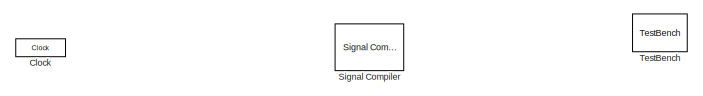
[diagram: root canvas - part 1/4, top center region]
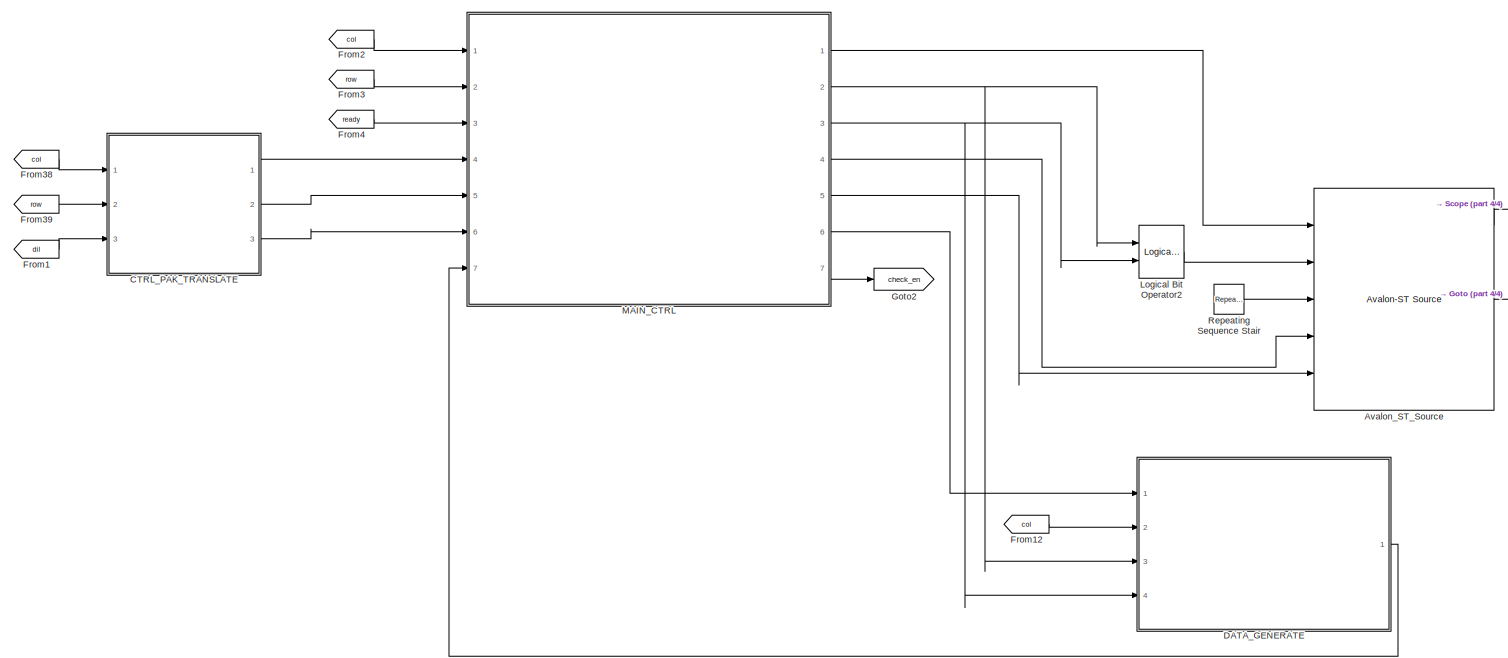
[diagram: root canvas - part 2/4, right side, full height]
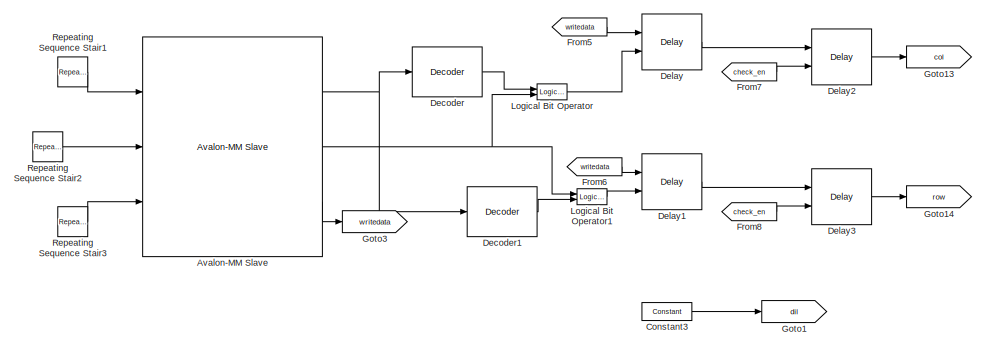
[diagram: root canvas - part 3/4, middle left region]
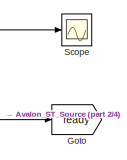
[diagram: root canvas - part 4/4, middle right region]
MODEL slx_450da6e0eb3a
KIND model
CONFIG InitFcn = %% DSPBuilder Start\nalt_dspbuilder_update_model(bdroot)\n%% DSPBuilder End\n
BLOCK [Reference] Avalon-MM Slave  REF=allblocks_alteradspbuilder2/Avalon-MM Slave
  BusType = Unsigned Integer
  PORTTYPE = Output
  Ports = [3, 3]
  SourceBlock = allblocks_alteradspbuilder2/Avalon-MM Slave
  SourceType = Avalon-MM Slave AlteraBlockset
  SpecifyClock = off
  addrAlignment = Dynamic
  addrType = Write
  addrWidth = 2
  burst = off
  bwl = 32
  bwr = 0
  byteEnable = off
  externalType = Inferred
  flowCtrl = off
  iofile = <path>%5FPattern%5FGenerator_Avalon-MM+Slave_address.salt,<path>%5FPattern%5FGenerator_Avalon-MM+Slave_write.salt,<path><+80ch>
  irq = off
  maxBurst = 4
  pipeline = off
  readLatencyCycles = 0
  readLatencyFormat = Fixed
  readWaitStateCycles = 0
  receiveBeginTransfer = off
  useChipSelect = off
  waitStateFormat = Fixed
  writeWaitStateCycles = 1
BLOCK [Reference] Avalon_ST_Source  REF=allblocks_alteradspbuilder2/Avalon-ST Source
  BusType = Unsigned Integer
  PORTTYPE = Input
  Ports = [5, 5]
  SourceBlock = allblocks_alteradspbuilder2/Avalon-ST Source
  SourceType = Avalon-ST Source AlteraBlockset
  SpecifyClock = off
  bwl = 24
  bwr = 0
  empty = off
  endOfPacket = on
  externalType = Inferred
  iofile = <path>%5FPattern%5FGenerator_Avalon%5FST%5FSource_data.capture,<path>%5FPattern%5FGenerator_Avalon%5FST%5FSource_valid.capture,<path><+440ch>
  numOfChannels = 0
  numOfErrorDescriptors = 0
  readyLatency = 1
  startOfPacket = on
  symbolWidth = 8
  symbolsPerBeat = 3
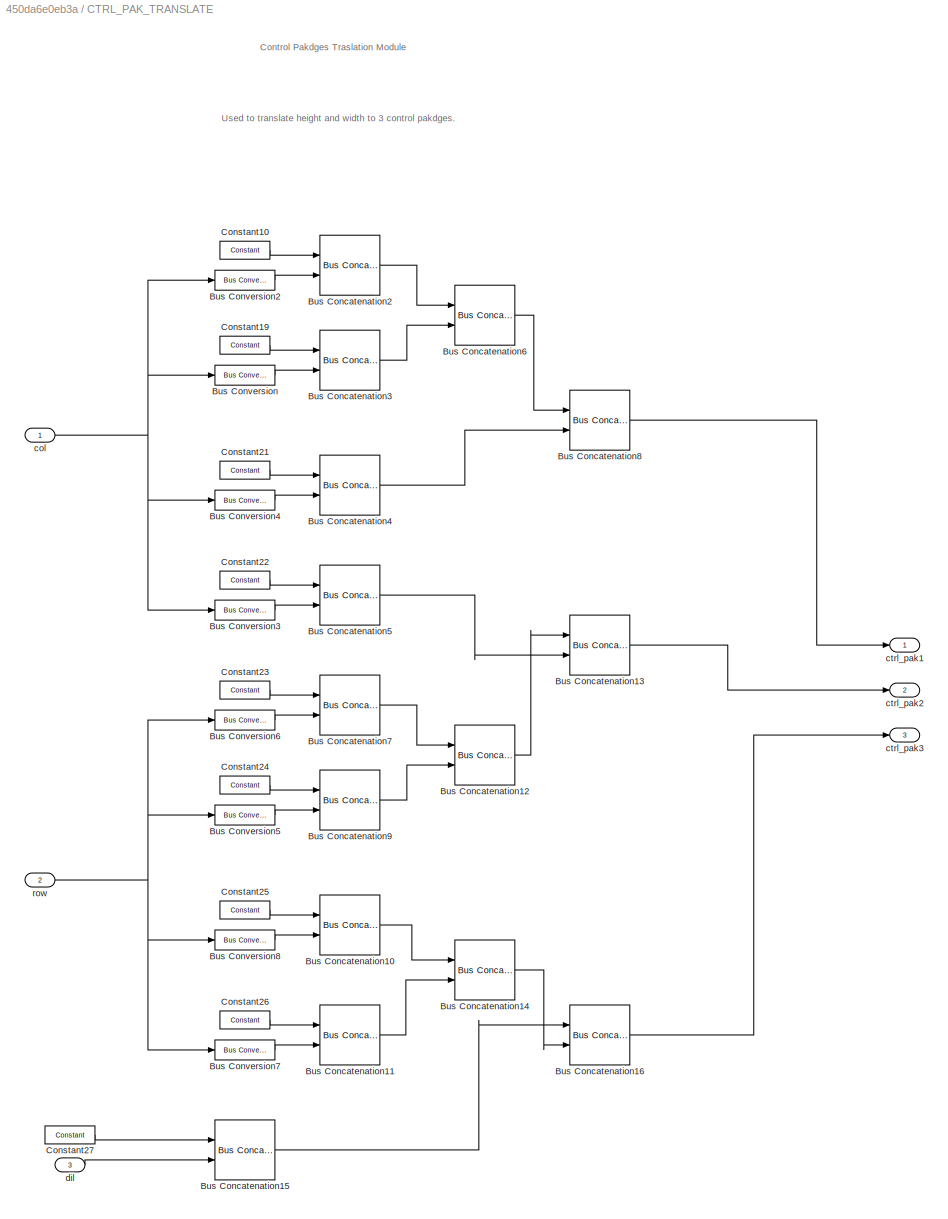
BLOCK [SubSystem] CTRL_PAK_TRANSLATE
  FunctionWithSeparateData = off
  MaskHideContents = off
  MinAlgLoopOccurrences = off
  Opaque = off
  Ports = [3, 3]
  PropExecContextOutsideSubsystem = off
  RTWSystemCode = Auto
  RequestExecContextInheritance = off
BLOCK [Reference] CTRL_PAK_TRANSLATE/Bus Concatenation10  REF=allblocks_alteradspbuilder2/Bus Concatenation
  Ports = [2, 1]
  SourceBlock = allblocks_alteradspbuilder2/Bus Concatenation
  SourceType = Bus Concatenate AlteraBlockset
  awidth = 4
  bwidth = 4
  isSigned = off
  pipeline_display = 0
BLOCK [Reference] CTRL_PAK_TRANSLATE/Bus Concatenation11  REF=allblocks_alteradspbuilder2/Bus Concatenation
  Ports = [2, 1]
  SourceBlock = allblocks_alteradspbuilder2/Bus Concatenation
  SourceType = Bus Concatenate AlteraBlockset
  awidth = 4
  bwidth = 4
  isSigned = off
  pipeline_display = 0
BLOCK [Reference] CTRL_PAK_TRANSLATE/Bus Concatenation12  REF=allblocks_alteradspbuilder2/Bus Concatenation
  Ports = [2, 1]
  SourceBlock = allblocks_alteradspbuilder2/Bus Concatenation
  SourceType = Bus Concatenate AlteraBlockset
  awidth = 8
  bwidth = 8
  isSigned = off
  pipeline_display = 0
BLOCK [Reference] CTRL_PAK_TRANSLATE/Bus Concatenation13  REF=allblocks_alteradspbuilder2/Bus Concatenation
  Ports = [2, 1]
  SourceBlock = allblocks_alteradspbuilder2/Bus Concatenation
  SourceType = Bus Concatenate AlteraBlockset
  awidth = 16
  bwidth = 8
  isSigned = off
  pipeline_display = 0
BLOCK [Reference] CTRL_PAK_TRANSLATE/Bus Concatenation14  REF=allblocks_alteradspbuilder2/Bus Concatenation
  Ports = [2, 1]
  SourceBlock = allblocks_alteradspbuilder2/Bus Concatenation
  SourceType = Bus Concatenate AlteraBlockset
  awidth = 8
  bwidth = 8
  isSigned = off
  pipeline_display = 0
BLOCK [Reference] CTRL_PAK_TRANSLATE/Bus Concatenation15  REF=allblocks_alteradspbuilder2/Bus Concatenation
  Ports = [2, 1]
  SourceBlock = allblocks_alteradspbuilder2/Bus Concatenation
  SourceType = Bus Concatenate AlteraBlockset
  awidth = 4
  bwidth = 4
  isSigned = off
  pipeline_display = 0
BLOCK [Reference] CTRL_PAK_TRANSLATE/Bus Concatenation16  REF=allblocks_alteradspbuilder2/Bus Concatenation
  Ports = [2, 1]
  SourceBlock = allblocks_alteradspbuilder2/Bus Concatenation
  SourceType = Bus Concatenate AlteraBlockset
  awidth = 8
  bwidth = 16
  isSigned = off
  pipeline_display = 0
BLOCK [Reference] CTRL_PAK_TRANSLATE/Bus Concatenation2  REF=allblocks_alteradspbuilder2/Bus Concatenation
  Ports = [2, 1]
  SourceBlock = allblocks_alteradspbuilder2/Bus Concatenation
  SourceType = Bus Concatenate AlteraBlockset
  awidth = 4
  bwidth = 4
  isSigned = off
  pipeline_display = 0
BLOCK [Reference] CTRL_PAK_TRANSLATE/Bus Concatenation3  REF=allblocks_alteradspbuilder2/Bus Concatenation
  Ports = [2, 1]
  SourceBlock = allblocks_alteradspbuilder2/Bus Concatenation
  SourceType = Bus Concatenate AlteraBlockset
  awidth = 4
  bwidth = 4
  isSigned = off
  pipeline_display = 0
BLOCK [Reference] CTRL_PAK_TRANSLATE/Bus Concatenation4  REF=allblocks_alteradspbuilder2/Bus Concatenation
  Ports = [2, 1]
  SourceBlock = allblocks_alteradspbuilder2/Bus Concatenation
  SourceType = Bus Concatenate AlteraBlockset
  awidth = 4
  bwidth = 4
  isSigned = off
  pipeline_display = 0
BLOCK [Reference] CTRL_PAK_TRANSLATE/Bus Concatenation5  REF=allblocks_alteradspbuilder2/Bus Concatenation
  Ports = [2, 1]
  SourceBlock = allblocks_alteradspbuilder2/Bus Concatenation
  SourceType = Bus Concatenate AlteraBlockset
  awidth = 4
  bwidth = 4
  isSigned = off
  pipeline_display = 0
BLOCK [Reference] CTRL_PAK_TRANSLATE/Bus Concatenation6  REF=allblocks_alteradspbuilder2/Bus Concatenation
  Ports = [2, 1]
  SourceBlock = allblocks_alteradspbuilder2/Bus Concatenation
  SourceType = Bus Concatenate AlteraBlockset
  awidth = 8
  bwidth = 8
  isSigned = off
  pipeline_display = 0
BLOCK [Reference] CTRL_PAK_TRANSLATE/Bus Concatenation7  REF=allblocks_alteradspbuilder2/Bus Concatenation
  Ports = [2, 1]
  SourceBlock = allblocks_alteradspbuilder2/Bus Concatenation
  SourceType = Bus Concatenate AlteraBlockset
  awidth = 4
  bwidth = 4
  isSigned = off
  pipeline_display = 0
BLOCK [Reference] CTRL_PAK_TRANSLATE/Bus Concatenation8  REF=allblocks_alteradspbuilder2/Bus Concatenation
  Ports = [2, 1]
  SourceBlock = allblocks_alteradspbuilder2/Bus Concatenation
  SourceType = Bus Concatenate AlteraBlockset
  awidth = 16
  bwidth = 8
  isSigned = off
  pipeline_display = 0
BLOCK [Reference] CTRL_PAK_TRANSLATE/Bus Concatenation9  REF=allblocks_alteradspbuilder2/Bus Concatenation
  Ports = [2, 1]
  SourceBlock = allblocks_alteradspbuilder2/Bus Concatenation
  SourceType = Bus Concatenate AlteraBlockset
  awidth = 4
  bwidth = 4
  isSigned = off
  pipeline_display = 0
BLOCK [Reference] CTRL_PAK_TRANSLATE/Bus Conversion  REF=allblocks_alteradspbuilder2/Bus Conversion
  BusType = Unsigned Integer
  Ports = [1, 1]
  SourceBlock = allblocks_alteradspbuilder2/Bus Conversion
  SourceType = Bus Conversion AlteraBlockset
  bitToConnectToOutputLSB = 8
  bwl = 4
  bwr = 1
  ibwl = 16
  ibwr = 1
  pipeline_display = 0
  round = off
  saturate = off
BLOCK [Reference] CTRL_PAK_TRANSLATE/Bus Conversion2  REF=allblocks_alteradspbuilder2/Bus Conversion
  BusType = Unsigned Integer
  Ports = [1, 1]
  SourceBlock = allblocks_alteradspbuilder2/Bus Conversion
  SourceType = Bus Conversion AlteraBlockset
  bitToConnectToOutputLSB = 4
  bwl = 4
  bwr = 1
  ibwl = 16
  ibwr = 1
  pipeline_display = 0
  round = off
  saturate = off
BLOCK [Reference] CTRL_PAK_TRANSLATE/Bus Conversion3  REF=allblocks_alteradspbuilder2/Bus Conversion
  BusType = Unsigned Integer
  Ports = [1, 1]
  SourceBlock = allblocks_alteradspbuilder2/Bus Conversion
  SourceType = Bus Conversion AlteraBlockset
  bitToConnectToOutputLSB = 0
  bwl = 4
  bwr = 1
  ibwl = 16
  ibwr = 1
  pipeline_display = 0
  round = off
  saturate = off
BLOCK [Reference] CTRL_PAK_TRANSLATE/Bus Conversion4  REF=allblocks_alteradspbuilder2/Bus Conversion
  BusType = Unsigned Integer
  Ports = [1, 1]
  SourceBlock = allblocks_alteradspbuilder2/Bus Conversion
  SourceType = Bus Conversion AlteraBlockset
  bitToConnectToOutputLSB = 12
  bwl = 4
  bwr = 1
  ibwl = 16
  ibwr = 1
  pipeline_display = 0
  round = off
  saturate = off
BLOCK [Reference] CTRL_PAK_TRANSLATE/Bus Conversion5  REF=allblocks_alteradspbuilder2/Bus Conversion
  BusType = Unsigned Integer
  Ports = [1, 1]
  SourceBlock = allblocks_alteradspbuilder2/Bus Conversion
  SourceType = Bus Conversion AlteraBlockset
  bitToConnectToOutputLSB = 12
  bwl = 4
  bwr = 1
  ibwl = 16
  ibwr = 1
  pipeline_display = 0
  round = off
  saturate = off
BLOCK [Reference] CTRL_PAK_TRANSLATE/Bus Conversion6  REF=allblocks_alteradspbuilder2/Bus Conversion
  BusType = Unsigned Integer
  Ports = [1, 1]
  SourceBlock = allblocks_alteradspbuilder2/Bus Conversion
  SourceType = Bus Conversion AlteraBlockset
  bitToConnectToOutputLSB = 8
  bwl = 4
  bwr = 1
  ibwl = 16
  ibwr = 1
  pipeline_display = 0
  round = off
  saturate = off
BLOCK [Reference] CTRL_PAK_TRANSLATE/Bus Conversion7  REF=allblocks_alteradspbuilder2/Bus Conversion
  BusType = Unsigned Integer
  Ports = [1, 1]
  SourceBlock = allblocks_alteradspbuilder2/Bus Conversion
  SourceType = Bus Conversion AlteraBlockset
  bitToConnectToOutputLSB = 4
  bwl = 4
  bwr = 1
  ibwl = 16
  ibwr = 1
  pipeline_display = 0
  round = off
  saturate = off
BLOCK [Reference] CTRL_PAK_TRANSLATE/Bus Conversion8  REF=allblocks_alteradspbuilder2/Bus Conversion
  BusType = Unsigned Integer
  Ports = [1, 1]
  SourceBlock = allblocks_alteradspbuilder2/Bus Conversion
  SourceType = Bus Conversion AlteraBlockset
  bitToConnectToOutputLSB = 0
  bwl = 4
  bwr = 1
  ibwl = 16
  ibwr = 1
  pipeline_display = 0
  round = off
  saturate = off
BLOCK [Reference] CTRL_PAK_TRANSLATE/Constant10  REF=allblocks_alteradspbuilder2/Constant
  BusType = Signed Integer
  Ports = [0, 1]
  SourceBlock = allblocks_alteradspbuilder2/Constant
  SourceType = Constant AlteraBlockset
  SpecifyClock = off
  allowFloatingPointOverride = on
  bwl = 4
  bwr = 0
  logFile = <path>%5FPattern%5FGenerator_CTRL%5FPAK%5FTRANSLATE_Constant10.fixedpointlog
  logOutputs = off
  mask_cst = 0
  roundMode = Truncate
  satMode = Wrap
BLOCK [Reference] CTRL_PAK_TRANSLATE/Constant19  REF=allblocks_alteradspbuilder2/Constant
  BusType = Signed Integer
  Ports = [0, 1]
  SourceBlock = allblocks_alteradspbuilder2/Constant
  SourceType = Constant AlteraBlockset
  SpecifyClock = off
  allowFloatingPointOverride = on
  bwl = 4
  bwr = 0
  logFile = <path>%5FPattern%5FGenerator_CTRL%5FPAK%5FTRANSLATE_Constant19.fixedpointlog
  logOutputs = off
  mask_cst = 0
  roundMode = Truncate
  satMode = Wrap
BLOCK [Reference] CTRL_PAK_TRANSLATE/Constant21  REF=allblocks_alteradspbuilder2/Constant
  BusType = Signed Integer
  Ports = [0, 1]
  SourceBlock = allblocks_alteradspbuilder2/Constant
  SourceType = Constant AlteraBlockset
  SpecifyClock = off
  allowFloatingPointOverride = on
  bwl = 4
  bwr = 0
  logFile = <path>%5FPattern%5FGenerator_CTRL%5FPAK%5FTRANSLATE_Constant21.fixedpointlog
  logOutputs = off
  mask_cst = 0
  roundMode = Truncate
  satMode = Wrap
BLOCK [Reference] CTRL_PAK_TRANSLATE/Constant22  REF=allblocks_alteradspbuilder2/Constant
  BusType = Signed Integer
  Ports = [0, 1]
  SourceBlock = allblocks_alteradspbuilder2/Constant
  SourceType = Constant AlteraBlockset
  SpecifyClock = off
  allowFloatingPointOverride = on
  bwl = 4
  bwr = 0
  logFile = <path>%5FPattern%5FGenerator_CTRL%5FPAK%5FTRANSLATE_Constant22.fixedpointlog
  logOutputs = off
  mask_cst = 0
  roundMode = Truncate
  satMode = Wrap
BLOCK [Reference] CTRL_PAK_TRANSLATE/Constant23  REF=allblocks_alteradspbuilder2/Constant
  BusType = Signed Integer
  Ports = [0, 1]
  SourceBlock = allblocks_alteradspbuilder2/Constant
  SourceType = Constant AlteraBlockset
  SpecifyClock = off
  allowFloatingPointOverride = on
  bwl = 4
  bwr = 0
  logFile = <path>%5FPattern%5FGenerator_CTRL%5FPAK%5FTRANSLATE_Constant23.fixedpointlog
  logOutputs = off
  mask_cst = 0
  roundMode = Truncate
  satMode = Wrap
BLOCK [Reference] CTRL_PAK_TRANSLATE/Constant24  REF=allblocks_alteradspbuilder2/Constant
  BusType = Signed Integer
  Ports = [0, 1]
  SourceBlock = allblocks_alteradspbuilder2/Constant
  SourceType = Constant AlteraBlockset
  SpecifyClock = off
  allowFloatingPointOverride = on
  bwl = 4
  bwr = 0
  logFile = <path>%5FPattern%5FGenerator_CTRL%5FPAK%5FTRANSLATE_Constant24.fixedpointlog
  logOutputs = off
  mask_cst = 0
  roundMode = Truncate
  satMode = Wrap
BLOCK [Reference] CTRL_PAK_TRANSLATE/Constant25  REF=allblocks_alteradspbuilder2/Constant
  BusType = Signed Integer
  Ports = [0, 1]
  SourceBlock = allblocks_alteradspbuilder2/Constant
  SourceType = Constant AlteraBlockset
  SpecifyClock = off
  allowFloatingPointOverride = on
  bwl = 4
  bwr = 0
  logFile = <path>%5FPattern%5FGenerator_CTRL%5FPAK%5FTRANSLATE_Constant25.fixedpointlog
  logOutputs = off
  mask_cst = 0
  roundMode = Truncate
  satMode = Wrap
BLOCK [Reference] CTRL_PAK_TRANSLATE/Constant26  REF=allblocks_alteradspbuilder2/Constant
  BusType = Signed Integer
  Ports = [0, 1]
  SourceBlock = allblocks_alteradspbuilder2/Constant
  SourceType = Constant AlteraBlockset
  SpecifyClock = off
  allowFloatingPointOverride = on
  bwl = 4
  bwr = 0
  logFile = <path>%5FPattern%5FGenerator_CTRL%5FPAK%5FTRANSLATE_Constant26.fixedpointlog
  logOutputs = off
  mask_cst = 0
  roundMode = Truncate
  satMode = Wrap
BLOCK [Reference] CTRL_PAK_TRANSLATE/Constant27  REF=allblocks_alteradspbuilder2/Constant
  BusType = Signed Integer
  Ports = [0, 1]
  SourceBlock = allblocks_alteradspbuilder2/Constant
  SourceType = Constant AlteraBlockset
  SpecifyClock = off
  allowFloatingPointOverride = on
  bwl = 4
  bwr = 0
  logFile = <path>%5FPattern%5FGenerator_CTRL%5FPAK%5FTRANSLATE_Constant27.fixedpointlog
  logOutputs = off
  mask_cst = 0
  roundMode = Truncate
  satMode = Wrap
BLOCK [Inport] CTRL_PAK_TRANSLATE/col
  IconDisplay = Port number
BLOCK [Outport] CTRL_PAK_TRANSLATE/ctrl_pak1
  IconDisplay = Port number
BLOCK [Outport] CTRL_PAK_TRANSLATE/ctrl_pak2
  IconDisplay = Port number
  Port = 2
BLOCK [Outport] CTRL_PAK_TRANSLATE/ctrl_pak3
  IconDisplay = Port number
  Port = 3
BLOCK [Inport] CTRL_PAK_TRANSLATE/dil
  IconDisplay = Port number
  Port = 3
BLOCK [Inport] CTRL_PAK_TRANSLATE/row
  IconDisplay = Port number
  Port = 2
BLOCK [Reference] Clock  REF=allblocks_alteradspbuilder2/Clock
  ClockPeriod = 7.5
  ClockPeriodUnit = ns
  Export = off
  PhaseOffset = 0
  Ports = []
  Reset = aclr
  ResetLatency = 0
  ResetRegisterCascadeDepth = 0
  ResetType = Active Low
  SampleTime = 1
  SimulationStartCycle = 5
  SourceBlock = allblocks_alteradspbuilder2/Clock
  SourceType = BaseClock AlteraBlockset
BLOCK [Reference] Constant3  REF=allblocks_alteradspbuilder2/Constant
  BusType = Signed Integer
  Ports = [0, 1]
  SourceBlock = allblocks_alteradspbuilder2/Constant
  SourceType = Constant AlteraBlockset
  SpecifyClock = off
  allowFloatingPointOverride = on
  bwl = 4
  bwr = 0
  logFile = <path>%5FPattern%5FGenerator_Constant3.fixedpointlog
  logOutputs = off
  mask_cst = 0
  roundMode = Truncate
  satMode = Wrap
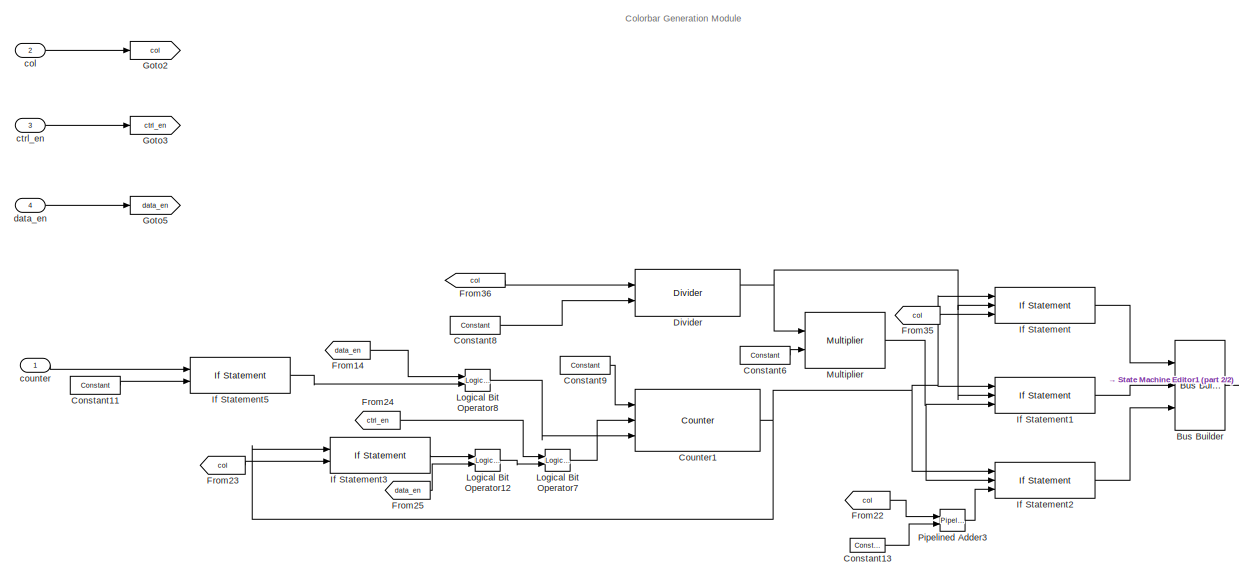
[diagram: DATA_GENERATE - part 1/2, center side, full height]
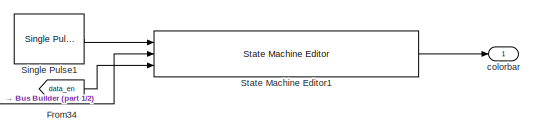
[diagram: DATA_GENERATE - part 2/2, middle right region]
BLOCK [SubSystem] DATA_GENERATE
  FunctionWithSeparateData = off
  MaskHideContents = off
  MinAlgLoopOccurrences = off
  Opaque = off
  Ports = [4, 1]
  PropExecContextOutsideSubsystem = off
  RTWSystemCode = Auto
  RequestExecContextInheritance = off
BLOCK [Reference] DATA_GENERATE/Bus Builder  REF=allblocks_alteradspbuilder2/Bus Builder
  BusType = Unsigned Integer
  Ports = [3, 1]
  SourceBlock = allblocks_alteradspbuilder2/Bus Builder
  SourceType = BusBuilder AlteraBlockset
  bwl = 3
  bwr = 1
  pipeline_display = 0
BLOCK [Reference] DATA_GENERATE/Constant11  REF=allblocks_alteradspbuilder2/Constant
  BusType = Unsigned Integer
  Ports = [0, 1]
  SourceBlock = allblocks_alteradspbuilder2/Constant
  SourceType = Constant AlteraBlockset
  SpecifyClock = off
  allowFloatingPointOverride = on
  bwl = 16
  bwr = 0
  logFile = <path>%5FPattern%5FGenerator_DATA%5FGENERATE_Constant11.fixedpointlog
  logOutputs = off
  mask_cst = 4
  roundMode = Truncate
  satMode = Wrap
BLOCK [Reference] DATA_GENERATE/Constant13  REF=allblocks_alteradspbuilder2/Constant
  BusType = Unsigned Integer
  Ports = [0, 1]
  SourceBlock = allblocks_alteradspbuilder2/Constant
  SourceType = Constant AlteraBlockset
  SpecifyClock = off
  allowFloatingPointOverride = on
  bwl = 24
  bwr = 0
  logFile = <path>%5FPattern%5FGenerator_DATA%5FGENERATE_Constant13.fixedpointlog
  logOutputs = off
  mask_cst = 1
  roundMode = Truncate
  satMode = Wrap
BLOCK [Reference] DATA_GENERATE/Constant6  REF=allblocks_alteradspbuilder2/Constant
  BusType = Unsigned Integer
  Ports = [0, 1]
  SourceBlock = allblocks_alteradspbuilder2/Constant
  SourceType = Constant AlteraBlockset
  SpecifyClock = off
  allowFloatingPointOverride = on
  bwl = 24
  bwr = 0
  logFile = <path>%5FPattern%5FGenerator_DATA%5FGENERATE_Constant6.fixedpointlog
  logOutputs = off
  mask_cst = 2
  roundMode = Truncate
  satMode = Wrap
BLOCK [Reference] DATA_GENERATE/Constant8  REF=allblocks_alteradspbuilder2/Constant
  BusType = Unsigned Integer
  Ports = [0, 1]
  SourceBlock = allblocks_alteradspbuilder2/Constant
  SourceType = Constant AlteraBlockset
  SpecifyClock = off
  allowFloatingPointOverride = on
  bwl = 24
  bwr = 0
  logFile = <path>%5FPattern%5FGenerator_DATA%5FGENERATE_Constant8.fixedpointlog
  logOutputs = off
  mask_cst = 3
  roundMode = Truncate
  satMode = Wrap
BLOCK [Reference] DATA_GENERATE/Constant9  REF=allblocks_alteradspbuilder2/Constant
  BusType = Unsigned Integer
  Ports = [0, 1]
  SourceBlock = allblocks_alteradspbuilder2/Constant
  SourceType = Constant AlteraBlockset
  SpecifyClock = off
  allowFloatingPointOverride = on
  bwl = 24
  bwr = 0
  logFile = <path>%5FPattern%5FGenerator_DATA%5FGENERATE_Constant9.fixedpointlog
  logOutputs = off
  mask_cst = 1
  roundMode = Truncate
  satMode = Wrap
BLOCK [Reference] DATA_GENERATE/Counter1  REF=allblocks_alteradspbuilder2/Counter
  BusType = Unsigned Integer
  Ports = [3, 1]
  SourceBlock = allblocks_alteradspbuilder2/Counter
  SourceType = Counter AlteraBlockset
  SpecifyClock = off
  bwl = 24
  bwr = 0
  direction = Increment
  modulo = 2^16
  pipeline_display = 1
  svalue = 1
  use_clk_ena = off
  use_ena = on
  use_modulo = on
  use_sclr = off
  use_sload = on
  use_sset = off
BLOCK [Reference] DATA_GENERATE/Divider  REF=allblocks_alteradspbuilder2/Divider
  BusType = Unsigned Integer
  Ports = [2, 2]
  SourceBlock = allblocks_alteradspbuilder2/Divider
  SourceType = Divider AlteraBlockset
  bwl = 24
  bwr = 0
  pipeline = 0
  pipeline_display = 0
  use_aclr = off
  use_ena = off
BLOCK [From] DATA_GENERATE/From14
  GotoTag = data_en
BLOCK [From] DATA_GENERATE/From22
  GotoTag = col
BLOCK [From] DATA_GENERATE/From23
  GotoTag = col
BLOCK [From] DATA_GENERATE/From24
  GotoTag = ctrl_en
BLOCK [From] DATA_GENERATE/From25
  GotoTag = data_en
BLOCK [From] DATA_GENERATE/From34
  GotoTag = data_en
BLOCK [From] DATA_GENERATE/From35
  GotoTag = col
BLOCK [From] DATA_GENERATE/From36
  GotoTag = col
BLOCK [Goto] DATA_GENERATE/Goto2
  GotoTag = col
BLOCK [Goto] DATA_GENERATE/Goto3
  GotoTag = ctrl_en
BLOCK [Goto] DATA_GENERATE/Goto5
  GotoTag = data_en
BLOCK [Reference] DATA_GENERATE/If Statement  REF=allblocks_alteradspbuilder2/If Statement
  BusType = Unsigned Integer
  Ports = [3, 1]
  SourceBlock = allblocks_alteradspbuilder2/If Statement
  SourceType = If Statement AlteraBlockset
  bwl = 24
  bwr = 0
  if_expression = ((a>0)&(a<b))|(a=c)
  pipeline_display = 1
  use_else_output = off
  use_elseif_input = off
  user_inputs = 3
BLOCK [Reference] DATA_GENERATE/If Statement1  REF=allblocks_alteradspbuilder2/If Statement
  BusType = Unsigned Integer
  Ports = [3, 1]
  SourceBlock = allblocks_alteradspbuilder2/If Statement
  SourceType = If Statement AlteraBlockset
  bwl = 24
  bwr = 0
  if_expression = ((a>b)|(a=b))&(a<c)
  pipeline_display = 1
  use_else_output = off
  use_elseif_input = off
  user_inputs = 3
BLOCK [Reference] DATA_GENERATE/If Statement2  REF=allblocks_alteradspbuilder2/If Statement
  BusType = Unsigned Integer
  Ports = [3, 1]
  SourceBlock = allblocks_alteradspbuilder2/If Statement
  SourceType = If Statement AlteraBlockset
  bwl = 24
  bwr = 0
  if_expression = ((a>b)|(a=b))&((a<c)|(a=c))
  pipeline_display = 1
  use_else_output = off
  use_elseif_input = off
  user_inputs = 3
BLOCK [Reference] DATA_GENERATE/If Statement3  REF=allblocks_alteradspbuilder2/If Statement
  BusType = Unsigned Integer
  Ports = [2, 1]
  SourceBlock = allblocks_alteradspbuilder2/If Statement
  SourceType = If Statement AlteraBlockset
  bwl = 24
  bwr = 0
  if_expression = a=b
  pipeline_display = 1
  use_else_output = off
  use_elseif_input = off
  user_inputs = 2
BLOCK [Reference] DATA_GENERATE/If Statement5  REF=allblocks_alteradspbuilder2/If Statement
  BusType = Unsigned Integer
  Ports = [2, 1]
  SourceBlock = allblocks_alteradspbuilder2/If Statement
  SourceType = If Statement AlteraBlockset
  bwl = 24
  bwr = 0
  if_expression = a>b
  pipeline_display = 1
  use_else_output = off
  use_elseif_input = off
  user_inputs = 2
BLOCK [Reference] DATA_GENERATE/Logical Bit Operator12  REF=allblocks_alteradspbuilder2/Logical Bit Operator
  LogicalOperator = AND
  Ports = [2, 1]
  SourceBlock = allblocks_alteradspbuilder2/Logical Bit Operator
  SourceType = Logical Bit Operator AlteraBlockset
  pipeline_display = 0
  user_inputs = 2
BLOCK [Reference] DATA_GENERATE/Logical Bit Operator7  REF=allblocks_alteradspbuilder2/Logical Bit Operator
  LogicalOperator = OR
  Ports = [2, 1]
  SourceBlock = allblocks_alteradspbuilder2/Logical Bit Operator
  SourceType = Logical Bit Operator AlteraBlockset
  pipeline_display = 0
  user_inputs = 2
BLOCK [Reference] DATA_GENERATE/Logical Bit Operator8  REF=allblocks_alteradspbuilder2/Logical Bit Operator
  LogicalOperator = AND
  Ports = [2, 1]
  SourceBlock = allblocks_alteradspbuilder2/Logical Bit Operator
  SourceType = Logical Bit Operator AlteraBlockset
  pipeline_display = 0
  user_inputs = 2
BLOCK [Reference] DATA_GENERATE/Multiplier  REF=allblocks_alteradspbuilder2/Multiplier
  BusType = Unsigned Integer
  FullResolution = on
  OutputBwl = 16
  OutputBwr = 16
  OutputLsb = 0
  OutputMsb = 8
  Ports = [2, 1]
  SourceBlock = allblocks_alteradspbuilder2/Multiplier
  SourceType = Multiplier AlteraBlockset
  UseDedicatedCircuitry = YES
  UseEqualInputWidth = on
  allowFloatingPointOverride = on
  bbwl = 8
  bbwr = 0
  bwl = 24
  bwr = 0
  logFile = <path>%5FPattern%5FGenerator_DATA%5FGENERATE_Multiplier.fixedpointlog
  logOutputs = off
  pipeline = 0
  pipeline_display = 0
  use_aclr = off
  use_ena = off
BLOCK [Reference] DATA_GENERATE/Pipelined Adder3  REF=allblocks_alteradspbuilder2/Pipelined Adder
  AddSubDirection = SUB
  BusType = Unsigned Integer
  Ports = [2, 1]
  SourceBlock = allblocks_alteradspbuilder2/Pipelined Adder
  SourceType = Pipelined Adder AlteraBlockset
  bwl = 24
  bwr = 0
  or_aclr_inputs = on
  pipeline = 2
  pipeline_display = 2
  use_aclr = off
  use_addsub = off
  use_cin = off
  use_ena = off
  use_ovl = off
BLOCK [Reference] DATA_GENERATE/Single Pulse1  REF=allblocks_alteradspbuilder2/Single Pulse
  Ports = [0, 1]
  SourceBlock = allblocks_alteradspbuilder2/Single Pulse
  SourceType = Single Pulse AlteraBlockset
  SpecifyClock = off
  delay = 1
  impulse_width = 1
  signal_type = Step Down
  use_ena = off
  use_sclr = off
BLOCK [Reference] DATA_GENERATE/State Machine Editor1  REF=allblocks_alteradspbuilder2/State Machine Editor
  Ports = [3, 1]
  SourceBlock = allblocks_alteradspbuilder2/State Machine Editor
  SourceType = Integrated Quartus State Machine AlteraBlockset
  array_clocks = clock
  entityName = StateMachineEditor1_import
  inBwls = 1 3 1
  inBwrs = 0  0  0
  inDelayed = 0  1  1
  inNames = reset col_select data_en
  inTypes = b s b
  is_megacore = off
  n_input_port = 3
  n_output_port = 1
  outBwls = 24
  outBwrs = 0
  outNames = data
  outTypes = s
  smf_variation = /*                                                                         \nWARNING: Do NOT edit the input and output ports in this file in a text     \neditor if you plan to continue editing the block that represents it in     \nthe Block Editor! File corruption is VERY likely to occur.                 \nCopyright (C) 1991-2013 Altera Corporation                                 \nYour use of Altera C...<+11079ch>
  use_dynamic_feedthrough_data = on
  use_systemC_model = off
  vofile = DSPBuilder_Test_Pattern_Generator_import\StateMachineEditor1.vo
  xmlmapfile = <path>
BLOCK [Inport] DATA_GENERATE/col
  IconDisplay = Port number
  Port = 2
BLOCK [Outport] DATA_GENERATE/colorbar
  IconDisplay = Port number
BLOCK [Inport] DATA_GENERATE/counter
  IconDisplay = Port number
BLOCK [Inport] DATA_GENERATE/ctrl_en
  IconDisplay = Port number
  Port = 3
BLOCK [Inport] DATA_GENERATE/data_en
  IconDisplay = Port number
  Port = 4
BLOCK [Reference] Decoder  REF=allblocks_alteradspbuilder2/Decoder
  BusType = Unsigned Integer
  Ports = [1, 1]
  SourceBlock = allblocks_alteradspbuilder2/Decoder
  SourceType = Decoder AlteraBlockset
  bwl = 2
  bwr = 2
  pipeline_display = 1
  registered = on
  value = 1
BLOCK [Reference] Decoder1  REF=allblocks_alteradspbuilder2/Decoder
  BusType = Unsigned Integer
  Ports = [1, 1]
  SourceBlock = allblocks_alteradspbuilder2/Decoder
  SourceType = Decoder AlteraBlockset
  bwl = 2
  bwr = 2
  pipeline_display = 1
  registered = on
  value = 2
BLOCK [Reference] Delay  REF=allblocks_alteradspbuilder2/Delay
  ClockPhase = 1
  Ports = [2, 1]
  SourceBlock = allblocks_alteradspbuilder2/Delay
  SourceType = Delay AlteraBlockset
  allowFloatingPointOverride = on
  logFile = <path>%5FPattern%5FGenerator_Delay.fixedpointlog
  logOutputs = off
  pipeline = 1
  pipeline_display = 1
  reset_value = 32
  use_ena = on
  use_init = on
  use_sclr = off
BLOCK [Reference] Delay1  REF=allblocks_alteradspbuilder2/Delay
  ClockPhase = 1
  Ports = [2, 1]
  SourceBlock = allblocks_alteradspbuilder2/Delay
  SourceType = Delay AlteraBlockset
  allowFloatingPointOverride = on
  logFile = <path>%5FPattern%5FGenerator_Delay1.fixedpointlog
  logOutputs = off
  pipeline = 1
  pipeline_display = 1
  reset_value = 32
  use_ena = on
  use_init = on
  use_sclr = off
BLOCK [Reference] Delay2  REF=allblocks_alteradspbuilder2/Delay
  ClockPhase = 1
  Ports = [2, 1]
  SourceBlock = allblocks_alteradspbuilder2/Delay
  SourceType = Delay AlteraBlockset
  allowFloatingPointOverride = on
  logFile = <path>%5FPattern%5FGenerator_Delay2.fixedpointlog
  logOutputs = off
  pipeline = 1
  pipeline_display = 1
  reset_value = 32
  use_ena = on
  use_init = on
  use_sclr = off
BLOCK [Reference] Delay3  REF=allblocks_alteradspbuilder2/Delay
  ClockPhase = 1
  Ports = [2, 1]
  SourceBlock = allblocks_alteradspbuilder2/Delay
  SourceType = Delay AlteraBlockset
  allowFloatingPointOverride = on
  logFile = <path>%5FPattern%5FGenerator_Delay3.fixedpointlog
  logOutputs = off
  pipeline = 1
  pipeline_display = 1
  reset_value = 32
  use_ena = on
  use_init = on
  use_sclr = off
BLOCK [From] From1
  GotoTag = dil
BLOCK [From] From12
  GotoTag = col
BLOCK [From] From2
  GotoTag = col
BLOCK [From] From3
  GotoTag = row
BLOCK [From] From38
  GotoTag = col
BLOCK [From] From39
  GotoTag = row
BLOCK [From] From4
  GotoTag = ready
BLOCK [From] From5
  GotoTag = writedata
BLOCK [From] From6
  GotoTag = writedata
BLOCK [From] From7
  GotoTag = check_en
BLOCK [From] From8
  GotoTag = check_en
BLOCK [Goto] Goto
  GotoTag = ready
BLOCK [Goto] Goto1
  GotoTag = dil
BLOCK [Goto] Goto13
  GotoTag = col
BLOCK [Goto] Goto14
  GotoTag = row
BLOCK [Goto] Goto2
  GotoTag = check_en
BLOCK [Goto] Goto3
  GotoTag = writedata
BLOCK [Reference] Logical Bit Operator  REF=allblocks_alteradspbuilder2/Logical Bit Operator
  LogicalOperator = AND
  Ports = [2, 1]
  SourceBlock = allblocks_alteradspbuilder2/Logical Bit Operator
  SourceType = Logical Bit Operator AlteraBlockset
  pipeline_display = 0
  user_inputs = 2
BLOCK [Reference] Logical Bit Operator1  REF=allblocks_alteradspbuilder2/Logical Bit Operator
  LogicalOperator = AND
  Ports = [2, 1]
  SourceBlock = allblocks_alteradspbuilder2/Logical Bit Operator
  SourceType = Logical Bit Operator AlteraBlockset
  pipeline_display = 0
  user_inputs = 2
BLOCK [Reference] Logical Bit Operator2  REF=allblocks_alteradspbuilder2/Logical Bit Operator
  LogicalOperator = OR
  Ports = [2, 1]
  SourceBlock = allblocks_alteradspbuilder2/Logical Bit Operator
  SourceType = Logical Bit Operator AlteraBlockset
  pipeline_display = 0
  user_inputs = 2
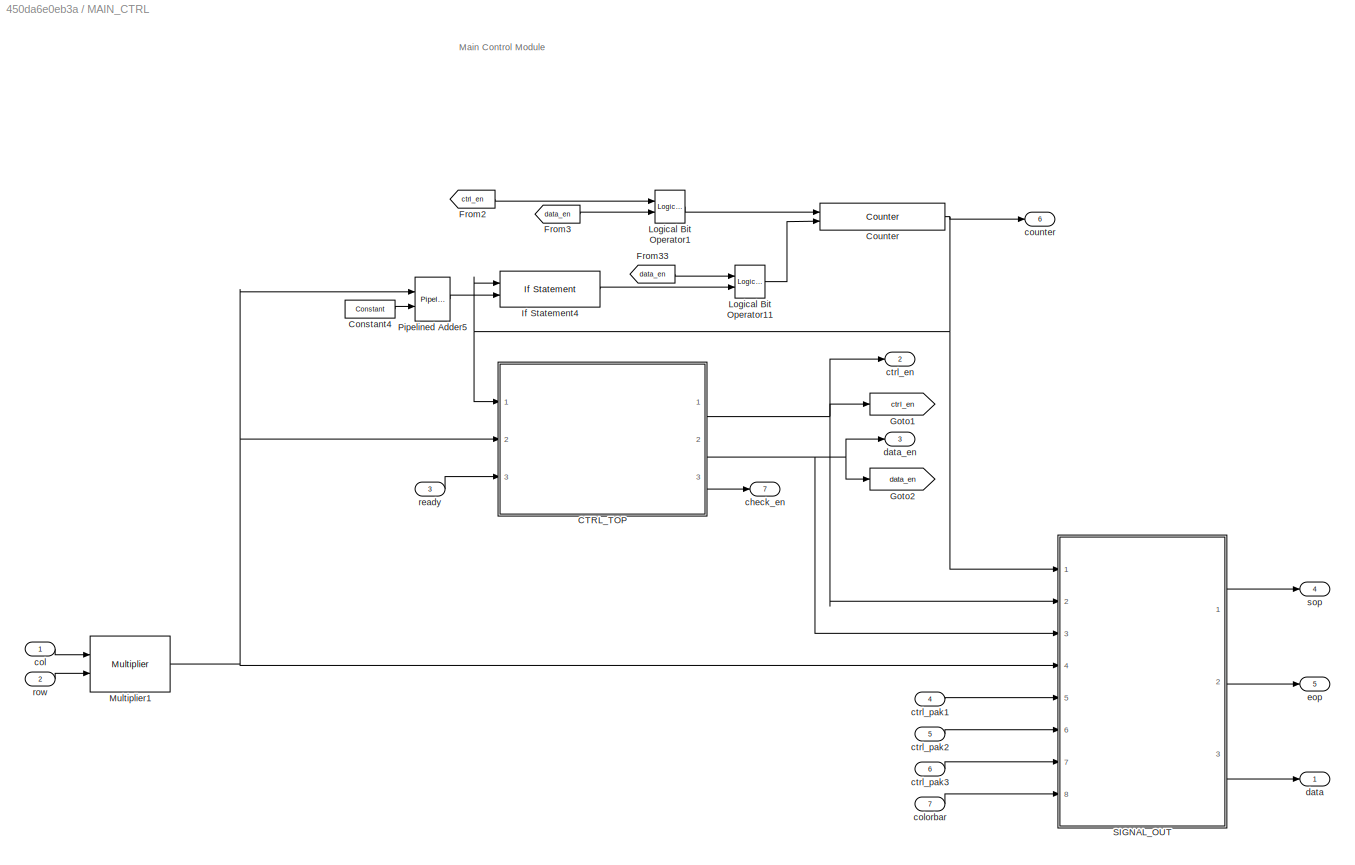
BLOCK [SubSystem] MAIN_CTRL
  FunctionWithSeparateData = off
  MaskHideContents = off
  MinAlgLoopOccurrences = off
  Opaque = off
  Ports = [7, 7]
  PropExecContextOutsideSubsystem = off
  RTWSystemCode = Auto
  RequestExecContextInheritance = off
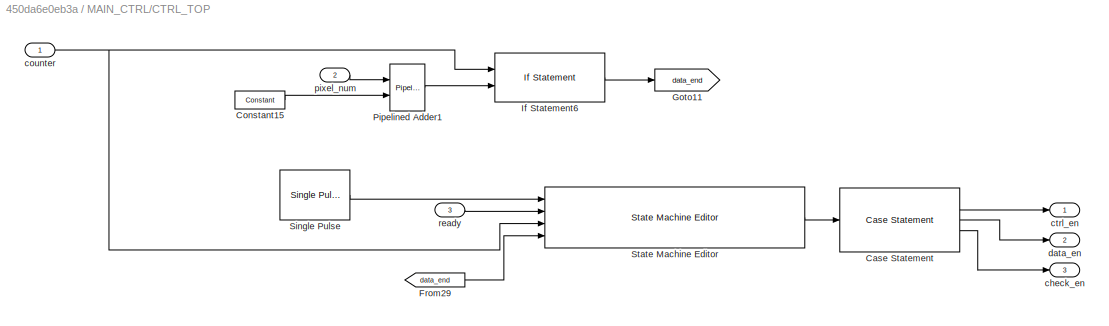
BLOCK [SubSystem] MAIN_CTRL/CTRL_TOP
  FunctionWithSeparateData = off
  MaskHideContents = off
  MinAlgLoopOccurrences = off
  Opaque = off
  Ports = [3, 3]
  PropExecContextOutsideSubsystem = off
  RTWSystemCode = Auto
  RequestExecContextInheritance = off
BLOCK [Reference] MAIN_CTRL/CTRL_TOP/Case Statement  REF=allblocks_alteradspbuilder2/Case Statement
  BusType = Unsigned Integer
  Ports = [1, 5]
  SourceBlock = allblocks_alteradspbuilder2/Case Statement
  SourceType = Case Statement AlteraBlockset
  bwl = 3
  bwr = 0
  case_expression = 0,1,2,4
  formatted_case_expression = 000,001,010,100
  hasDefault = on
  numOutputs = 5
  pipeline = off
  pipeline_display = 0
BLOCK [Reference] MAIN_CTRL/CTRL_TOP/Constant15  REF=allblocks_alteradspbuilder2/Constant
  BusType = Unsigned Integer
  Ports = [0, 1]
  SourceBlock = allblocks_alteradspbuilder2/Constant
  SourceType = Constant AlteraBlockset
  SpecifyClock = off
  allowFloatingPointOverride = on
  bwl = 24
  bwr = 0
  logFile = <path>%5FPattern%5FGenerator_MAIN%5FCTRL_CTRL%5FTOP_Constant15.fixedpointlog
  logOutputs = off
  mask_cst = 4
  roundMode = Truncate
  satMode = Wrap
BLOCK [From] MAIN_CTRL/CTRL_TOP/From29
  GotoTag = data_end
BLOCK [Goto] MAIN_CTRL/CTRL_TOP/Goto11
  GotoTag = data_end
BLOCK [Reference] MAIN_CTRL/CTRL_TOP/If Statement6  REF=allblocks_alteradspbuilder2/If Statement
  BusType = Unsigned Integer
  Ports = [2, 1]
  SourceBlock = allblocks_alteradspbuilder2/If Statement
  SourceType = If Statement AlteraBlockset
  bwl = 24
  bwr = 0
  if_expression = a=b
  pipeline_display = 1
  use_else_output = off
  use_elseif_input = off
  user_inputs = 2
BLOCK [Reference] MAIN_CTRL/CTRL_TOP/Pipelined Adder1  REF=allblocks_alteradspbuilder2/Pipelined Adder
  AddSubDirection = ADD
  BusType = Unsigned Integer
  Ports = [2, 1]
  SourceBlock = allblocks_alteradspbuilder2/Pipelined Adder
  SourceType = Pipelined Adder AlteraBlockset
  bwl = 24
  bwr = 0
  or_aclr_inputs = on
  pipeline = 2
  pipeline_display = 2
  use_aclr = off
  use_addsub = off
  use_cin = off
  use_ena = off
  use_ovl = off
BLOCK [Reference] MAIN_CTRL/CTRL_TOP/Single Pulse  REF=allblocks_alteradspbuilder2/Single Pulse
  Ports = [0, 1]
  SourceBlock = allblocks_alteradspbuilder2/Single Pulse
  SourceType = Single Pulse AlteraBlockset
  SpecifyClock = off
  delay = 1
  impulse_width = 1
  signal_type = Step Down
  use_ena = off
  use_sclr = off
BLOCK [Reference] MAIN_CTRL/CTRL_TOP/State Machine Editor  REF=allblocks_alteradspbuilder2/State Machine Editor
  Ports = [4, 1]
  SourceBlock = allblocks_alteradspbuilder2/State Machine Editor
  SourceType = Integrated Quartus State Machine AlteraBlockset
  array_clocks = clock
  entityName = StateMachineEditor_import
  inBwls = 1 1 24 1
  inBwrs = 0  0  0  0
  inDelayed = 0  1  0  1
  inNames = reset ready counter data_end
  inTypes = b b s b
  is_megacore = off
  n_input_port = 4
  n_output_port = 1
  outBwls = 3
  outBwrs = 0
  outNames = state
  outTypes = s
  smf_variation = /*                                                                         \nWARNING: Do NOT edit the input and output ports in this file in a text     \neditor if you plan to continue editing the block that represents it in     \nthe Block Editor! File corruption is VERY likely to occur.                 \nCopyright (C) 1991-2013 Altera Corporation                                 \nYour use of Altera C...<+11915ch>
  use_dynamic_feedthrough_data = on
  use_systemC_model = off
  vofile = DSPBuilder_Test_Pattern_Generator_import\StateMachineEditor.vo
  xmlmapfile = <path>
BLOCK [Outport] MAIN_CTRL/CTRL_TOP/check_en
  IconDisplay = Port number
  Port = 3
BLOCK [Inport] MAIN_CTRL/CTRL_TOP/counter
  IconDisplay = Port number
BLOCK [Outport] MAIN_CTRL/CTRL_TOP/ctrl_en
  IconDisplay = Port number
BLOCK [Outport] MAIN_CTRL/CTRL_TOP/data_en
  IconDisplay = Port number
  Port = 2
BLOCK [Inport] MAIN_CTRL/CTRL_TOP/pixel_num
  IconDisplay = Port number
  Port = 2
BLOCK [Inport] MAIN_CTRL/CTRL_TOP/ready
  IconDisplay = Port number
  Port = 3
BLOCK [Reference] MAIN_CTRL/Constant4  REF=allblocks_alteradspbuilder2/Constant
  BusType = Unsigned Integer
  Ports = [0, 1]
  SourceBlock = allblocks_alteradspbuilder2/Constant
  SourceType = Constant AlteraBlockset
  SpecifyClock = off
  allowFloatingPointOverride = on
  bwl = 24
  bwr = 0
  logFile = <path>%5FPattern%5FGenerator_MAIN%5FCTRL_Constant4.fixedpointlog
  logOutputs = off
  mask_cst = 4
  roundMode = Truncate
  satMode = Wrap
BLOCK [Reference] MAIN_CTRL/Counter  REF=allblocks_alteradspbuilder2/Counter
  BusType = Unsigned Integer
  Ports = [2, 1]
  SourceBlock = allblocks_alteradspbuilder2/Counter
  SourceType = Counter AlteraBlockset
  SpecifyClock = off
  bwl = 24
  bwr = 0
  direction = Increment
  modulo = 2^23
  pipeline_display = 1
  svalue = 1
  use_clk_ena = off
  use_ena = on
  use_modulo = on
  use_sclr = on
  use_sload = off
  use_sset = off
BLOCK [From] MAIN_CTRL/From2
  GotoTag = ctrl_en
BLOCK [From] MAIN_CTRL/From3
  GotoTag = data_en
BLOCK [From] MAIN_CTRL/From33
  GotoTag = data_en
BLOCK [Goto] MAIN_CTRL/Goto1
  GotoTag = ctrl_en
BLOCK [Goto] MAIN_CTRL/Goto2
  GotoTag = data_en
BLOCK [Reference] MAIN_CTRL/If Statement4  REF=allblocks_alteradspbuilder2/If Statement
  BusType = Unsigned Integer
  Ports = [2, 1]
  SourceBlock = allblocks_alteradspbuilder2/If Statement
  SourceType = If Statement AlteraBlockset
  bwl = 24
  bwr = 0
  if_expression = a=b
  pipeline_display = 1
  use_else_output = off
  use_elseif_input = off
  user_inputs = 2
BLOCK [Reference] MAIN_CTRL/Logical Bit Operator1  REF=allblocks_alteradspbuilder2/Logical Bit Operator
  LogicalOperator = OR
  Ports = [2, 1]
  SourceBlock = allblocks_alteradspbuilder2/Logical Bit Operator
  SourceType = Logical Bit Operator AlteraBlockset
  pipeline_display = 0
  user_inputs = 2
BLOCK [Reference] MAIN_CTRL/Logical Bit Operator11  REF=allblocks_alteradspbuilder2/Logical Bit Operator
  LogicalOperator = AND
  Ports = [2, 1]
  SourceBlock = allblocks_alteradspbuilder2/Logical Bit Operator
  SourceType = Logical Bit Operator AlteraBlockset
  pipeline_display = 0
  user_inputs = 2
BLOCK [Reference] MAIN_CTRL/Multiplier1  REF=allblocks_alteradspbuilder2/Multiplier
  BusType = Unsigned Integer
  FullResolution = on
  OutputBwl = 16
  OutputBwr = 16
  OutputLsb = 0
  OutputMsb = 8
  Ports = [2, 1]
  SourceBlock = allblocks_alteradspbuilder2/Multiplier
  SourceType = Multiplier AlteraBlockset
  UseDedicatedCircuitry = YES
  UseEqualInputWidth = on
  allowFloatingPointOverride = on
  bbwl = 8
  bbwr = 0
  bwl = 24
  bwr = 0
  logFile = <path>%5FPattern%5FGenerator_MAIN%5FCTRL_Multiplier1.fixedpointlog
  logOutputs = off
  pipeline = 0
  pipeline_display = 0
  use_aclr = off
  use_ena = off
BLOCK [Reference] MAIN_CTRL/Pipelined Adder5  REF=allblocks_alteradspbuilder2/Pipelined Adder
  AddSubDirection = ADD
  BusType = Unsigned Integer
  Ports = [2, 1]
  SourceBlock = allblocks_alteradspbuilder2/Pipelined Adder
  SourceType = Pipelined Adder AlteraBlockset
  bwl = 24
  bwr = 0
  or_aclr_inputs = on
  pipeline = 0
  pipeline_display = 0
  use_aclr = off
  use_addsub = off
  use_cin = off
  use_ena = off
  use_ovl = off
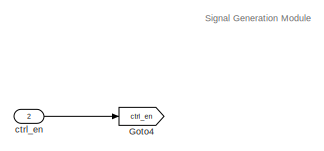
[diagram: MAIN_CTRL/SIGNAL_OUT - part 1/2, top left region]
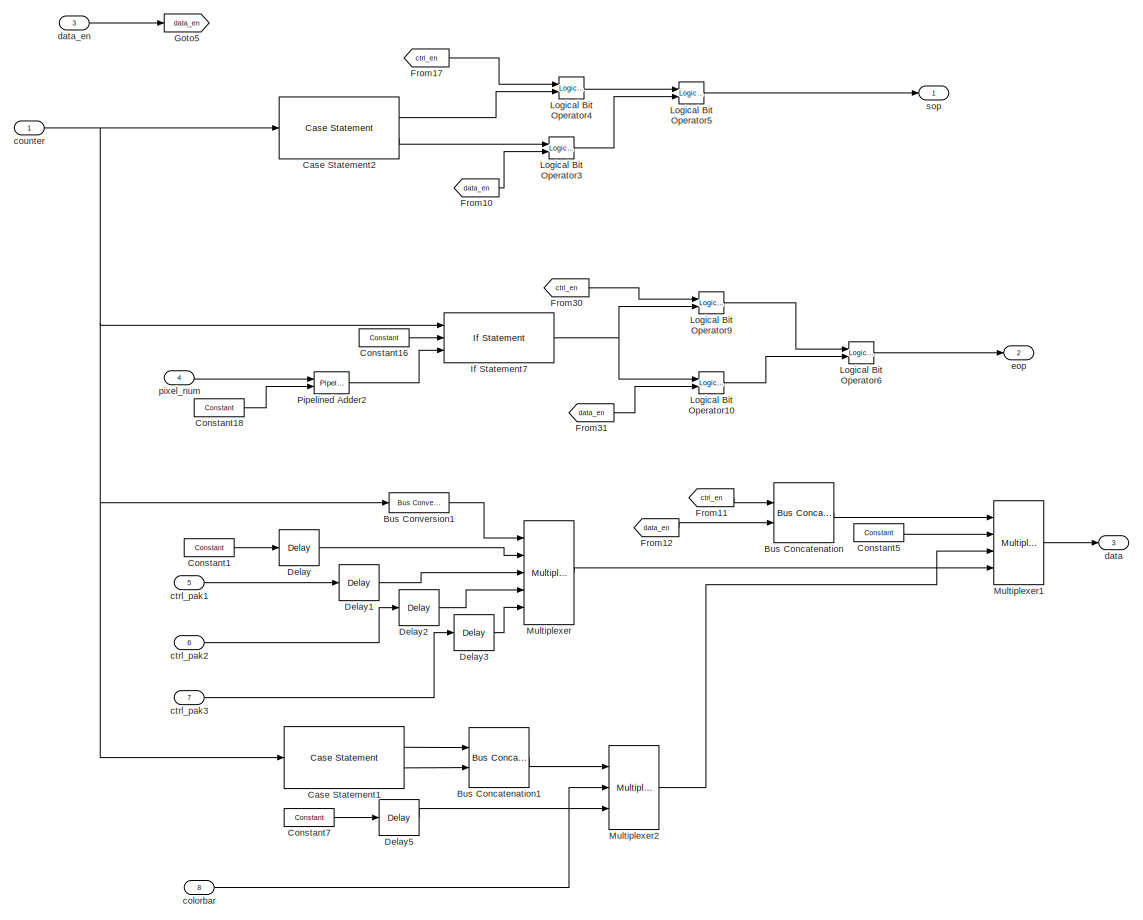
[diagram: MAIN_CTRL/SIGNAL_OUT - part 2/2, most of the canvas]
BLOCK [SubSystem] MAIN_CTRL/SIGNAL_OUT
  FunctionWithSeparateData = off
  MaskHideContents = off
  MinAlgLoopOccurrences = off
  Opaque = off
  Ports = [8, 3]
  PropExecContextOutsideSubsystem = off
  RTWSystemCode = Auto
  RequestExecContextInheritance = off
BLOCK [Reference] MAIN_CTRL/SIGNAL_OUT/Bus Concatenation  REF=allblocks_alteradspbuilder2/Bus Concatenation
  Ports = [2, 1]
  SourceBlock = allblocks_alteradspbuilder2/Bus Concatenation
  SourceType = Bus Concatenate AlteraBlockset
  awidth = 1
  bwidth = 1
  isSigned = off
  pipeline_display = 0
BLOCK [Reference] MAIN_CTRL/SIGNAL_OUT/Bus Concatenation1  REF=allblocks_alteradspbuilder2/Bus Concatenation
  Ports = [2, 1]
  SourceBlock = allblocks_alteradspbuilder2/Bus Concatenation
  SourceType = Bus Concatenate AlteraBlockset
  awidth = 1
  bwidth = 1
  isSigned = off
  pipeline_display = 0
BLOCK [Reference] MAIN_CTRL/SIGNAL_OUT/Bus Conversion1  REF=allblocks_alteradspbuilder2/Bus Conversion
  BusType = Unsigned Integer
  Ports = [1, 1]
  SourceBlock = allblocks_alteradspbuilder2/Bus Conversion
  SourceType = Bus Conversion AlteraBlockset
  bitToConnectToOutputLSB = 0
  bwl = 2
  bwr = 1
  ibwl = 24
  ibwr = 1
  pipeline_display = 0
  round = off
  saturate = off
BLOCK [Reference] MAIN_CTRL/SIGNAL_OUT/Case Statement1  REF=allblocks_alteradspbuilder2/Case Statement
  BusType = Unsigned Integer
  Ports = [1, 2]
  SourceBlock = allblocks_alteradspbuilder2/Case Statement
  SourceType = Case Statement AlteraBlockset
  bwl = 16
  bwr = 0
  case_expression = 4
  formatted_case_expression = 0000000000000100
  hasDefault = on
  numOutputs = 2
  pipeline = off
  pipeline_display = 0
BLOCK [Reference] MAIN_CTRL/SIGNAL_OUT/Case Statement2  REF=allblocks_alteradspbuilder2/Case Statement
  BusType = Unsigned Integer
  Ports = [1, 2]
  SourceBlock = allblocks_alteradspbuilder2/Case Statement
  SourceType = Case Statement AlteraBlockset
  bwl = 16
  bwr = 0
  case_expression = 0,4
  formatted_case_expression = 0000000000000000,0000000000000100
  hasDefault = off
  numOutputs = 2
  pipeline = off
  pipeline_display = 0
BLOCK [Reference] MAIN_CTRL/SIGNAL_OUT/Constant1  REF=allblocks_alteradspbuilder2/Constant
  BusType = Unsigned Integer
  Ports = [0, 1]
  SourceBlock = allblocks_alteradspbuilder2/Constant
  SourceType = Constant AlteraBlockset
  SpecifyClock = off
  allowFloatingPointOverride = on
  bwl = 24
  bwr = 0
  logFile = <path>%5FPattern%5FGenerator_MAIN%5FCTRL_SIGNAL%5FOUT_Constant1.fixedpointlog
  logOutputs = off
  mask_cst = 15
  roundMode = Truncate
  satMode = Wrap
BLOCK [Reference] MAIN_CTRL/SIGNAL_OUT/Constant16  REF=allblocks_alteradspbuilder2/Constant
  BusType = Unsigned Integer
  Ports = [0, 1]
  SourceBlock = allblocks_alteradspbuilder2/Constant
  SourceType = Constant AlteraBlockset
  SpecifyClock = off
  allowFloatingPointOverride = on
  bwl = 16
  bwr = 0
  logFile = <path>%5FPattern%5FGenerator_MAIN%5FCTRL_SIGNAL%5FOUT_Constant16.fixedpointlog
  logOutputs = off
  mask_cst = 3
  roundMode = Truncate
  satMode = Wrap
BLOCK [Reference] MAIN_CTRL/SIGNAL_OUT/Constant18  REF=allblocks_alteradspbuilder2/Constant
  BusType = Unsigned Integer
  Ports = [0, 1]
  SourceBlock = allblocks_alteradspbuilder2/Constant
  SourceType = Constant AlteraBlockset
  SpecifyClock = off
  allowFloatingPointOverride = on
  bwl = 24
  bwr = 0
  logFile = <path>%5FPattern%5FGenerator_MAIN%5FCTRL_SIGNAL%5FOUT_Constant18.fixedpointlog
  logOutputs = off
  mask_cst = 4
  roundMode = Truncate
  satMode = Wrap
BLOCK [Reference] MAIN_CTRL/SIGNAL_OUT/Constant5  REF=allblocks_alteradspbuilder2/Constant
  BusType = Unsigned Integer
  Ports = [0, 1]
  SourceBlock = allblocks_alteradspbuilder2/Constant
  SourceType = Constant AlteraBlockset
  SpecifyClock = off
  allowFloatingPointOverride = on
  bwl = 24
  bwr = 0
  logFile = <path>%5FPattern%5FGenerator_MAIN%5FCTRL_SIGNAL%5FOUT_Constant5.fixedpointlog
  logOutputs = off
  mask_cst = 0
  roundMode = Truncate
  satMode = Wrap
BLOCK [Reference] MAIN_CTRL/SIGNAL_OUT/Constant7  REF=allblocks_alteradspbuilder2/Constant
  BusType = Unsigned Integer
  Ports = [0, 1]
  SourceBlock = allblocks_alteradspbuilder2/Constant
  SourceType = Constant AlteraBlockset
  SpecifyClock = off
  allowFloatingPointOverride = on
  bwl = 24
  bwr = 0
  logFile = <path>%5FPattern%5FGenerator_MAIN%5FCTRL_SIGNAL%5FOUT_Constant7.fixedpointlog
  logOutputs = off
  mask_cst = 0
  roundMode = Truncate
  satMode = Wrap
BLOCK [Reference] MAIN_CTRL/SIGNAL_OUT/Delay  REF=allblocks_alteradspbuilder2/Delay
  ClockPhase = 1
  Ports = [1, 1]
  SourceBlock = allblocks_alteradspbuilder2/Delay
  SourceType = Delay AlteraBlockset
  allowFloatingPointOverride = on
  logFile = <path>%5FPattern%5FGenerator_MAIN%5FCTRL_SIGNAL%5FOUT_Delay.fixedpointlog
  logOutputs = off
  pipeline = 1
  pipeline_display = 1
  reset_value = 15
  use_ena = off
  use_init = off
  use_sclr = off
BLOCK [Reference] MAIN_CTRL/SIGNAL_OUT/Delay1  REF=allblocks_alteradspbuilder2/Delay
  ClockPhase = 1
  Ports = [1, 1]
  SourceBlock = allblocks_alteradspbuilder2/Delay
  SourceType = Delay AlteraBlockset
  allowFloatingPointOverride = on
  logFile = <path>%5FPattern%5FGenerator_MAIN%5FCTRL_SIGNAL%5FOUT_Delay1.fixedpointlog
  logOutputs = off
  pipeline = 1
  pipeline_display = 1
  reset_value = 2
  use_ena = off
  use_init = off
  use_sclr = off
BLOCK [Reference] MAIN_CTRL/SIGNAL_OUT/Delay2  REF=allblocks_alteradspbuilder2/Delay
  ClockPhase = 1
  Ports = [1, 1]
  SourceBlock = allblocks_alteradspbuilder2/Delay
  SourceType = Delay AlteraBlockset
  allowFloatingPointOverride = on
  logFile = <path>%5FPattern%5FGenerator_MAIN%5FCTRL_SIGNAL%5FOUT_Delay2.fixedpointlog
  logOutputs = off
  pipeline = 1
  pipeline_display = 1
  reset_value = 0
  use_ena = off
  use_init = off
  use_sclr = off
BLOCK [Reference] MAIN_CTRL/SIGNAL_OUT/Delay3  REF=allblocks_alteradspbuilder2/Delay
  ClockPhase = 1
  Ports = [1, 1]
  SourceBlock = allblocks_alteradspbuilder2/Delay
  SourceType = Delay AlteraBlockset
  allowFloatingPointOverride = on
  logFile = <path>%5FPattern%5FGenerator_MAIN%5FCTRL_SIGNAL%5FOUT_Delay3.fixedpointlog
  logOutputs = off
  pipeline = 1
  pipeline_display = 1
  reset_value = 2
  use_ena = off
  use_init = off
  use_sclr = off
BLOCK [Reference] MAIN_CTRL/SIGNAL_OUT/Delay5  REF=allblocks_alteradspbuilder2/Delay
  ClockPhase = 1
  Ports = [1, 1]
  SourceBlock = allblocks_alteradspbuilder2/Delay
  SourceType = Delay AlteraBlockset
  allowFloatingPointOverride = on
  logFile = <path>%5FPattern%5FGenerator_MAIN%5FCTRL_SIGNAL%5FOUT_Delay5.fixedpointlog
  logOutputs = off
  pipeline = 1
  pipeline_display = 1
  reset_value = 2
  use_ena = off
  use_init = off
  use_sclr = off
BLOCK [From] MAIN_CTRL/SIGNAL_OUT/From10
  GotoTag = data_en
BLOCK [From] MAIN_CTRL/SIGNAL_OUT/From11
  GotoTag = ctrl_en
BLOCK [From] MAIN_CTRL/SIGNAL_OUT/From12
  GotoTag = data_en
BLOCK [From] MAIN_CTRL/SIGNAL_OUT/From17
  GotoTag = ctrl_en
BLOCK [From] MAIN_CTRL/SIGNAL_OUT/From30
  GotoTag = ctrl_en
BLOCK [From] MAIN_CTRL/SIGNAL_OUT/From31
  GotoTag = data_en
BLOCK [Goto] MAIN_CTRL/SIGNAL_OUT/Goto4
  GotoTag = ctrl_en
BLOCK [Goto] MAIN_CTRL/SIGNAL_OUT/Goto5
  GotoTag = data_en
BLOCK [Reference] MAIN_CTRL/SIGNAL_OUT/If Statement7  REF=allblocks_alteradspbuilder2/If Statement
  BusType = Unsigned Integer
  Ports = [3, 1]
  SourceBlock = allblocks_alteradspbuilder2/If Statement
  SourceType = If Statement AlteraBlockset
  bwl = 24
  bwr = 0
  if_expression = (a=b)|(a=c)
  pipeline_display = 1
  use_else_output = off
  use_elseif_input = off
  user_inputs = 3
BLOCK [Reference] MAIN_CTRL/SIGNAL_OUT/Logical Bit Operator10  REF=allblocks_alteradspbuilder2/Logical Bit Operator
  LogicalOperator = AND
  Ports = [2, 1]
  SourceBlock = allblocks_alteradspbuilder2/Logical Bit Operator
  SourceType = Logical Bit Operator AlteraBlockset
  pipeline_display = 0
  user_inputs = 2
BLOCK [Reference] MAIN_CTRL/SIGNAL_OUT/Logical Bit Operator3  REF=allblocks_alteradspbuilder2/Logical Bit Operator
  LogicalOperator = AND
  Ports = [2, 1]
  SourceBlock = allblocks_alteradspbuilder2/Logical Bit Operator
  SourceType = Logical Bit Operator AlteraBlockset
  pipeline_display = 0
  user_inputs = 2
BLOCK [Reference] MAIN_CTRL/SIGNAL_OUT/Logical Bit Operator4  REF=allblocks_alteradspbuilder2/Logical Bit Operator
  LogicalOperator = AND
  Ports = [2, 1]
  SourceBlock = allblocks_alteradspbuilder2/Logical Bit Operator
  SourceType = Logical Bit Operator AlteraBlockset
  pipeline_display = 0
  user_inputs = 2
BLOCK [Reference] MAIN_CTRL/SIGNAL_OUT/Logical Bit Operator5  REF=allblocks_alteradspbuilder2/Logical Bit Operator
  LogicalOperator = OR
  Ports = [2, 1]
  SourceBlock = allblocks_alteradspbuilder2/Logical Bit Operator
  SourceType = Logical Bit Operator AlteraBlockset
  pipeline_display = 0
  user_inputs = 2
BLOCK [Reference] MAIN_CTRL/SIGNAL_OUT/Logical Bit Operator6  REF=allblocks_alteradspbuilder2/Logical Bit Operator
  LogicalOperator = OR
  Ports = [2, 1]
  SourceBlock = allblocks_alteradspbuilder2/Logical Bit Operator
  SourceType = Logical Bit Operator AlteraBlockset
  pipeline_display = 0
  user_inputs = 2
BLOCK [Reference] MAIN_CTRL/SIGNAL_OUT/Logical Bit Operator9  REF=allblocks_alteradspbuilder2/Logical Bit Operator
  LogicalOperator = AND
  Ports = [2, 1]
  SourceBlock = allblocks_alteradspbuilder2/Logical Bit Operator
  SourceType = Logical Bit Operator AlteraBlockset
  pipeline_display = 0
  user_inputs = 2
BLOCK [Reference] MAIN_CTRL/SIGNAL_OUT/Multiplexer  REF=allblocks_alteradspbuilder2/Multiplexer
  Ports = [5, 1]
  SourceBlock = allblocks_alteradspbuilder2/Multiplexer
  SourceType = Multiplexer AlteraBlockset
  allowFloatingPointOverride = off
  logFile = <path>%5FPattern%5FGenerator_MAIN%5FCTRL_SIGNAL%5FOUT_Multiplexer.fixedpointlog
  logOutputs = off
  numInputs = 4
  oneHot = off
  pipeline = 0
  pipeline_display = 0
  use_aclr = off
  use_ena = on
BLOCK [Reference] MAIN_CTRL/SIGNAL_OUT/Multiplexer1  REF=allblocks_alteradspbuilder2/Multiplexer
  Ports = [4, 1]
  SourceBlock = allblocks_alteradspbuilder2/Multiplexer
  SourceType = Multiplexer AlteraBlockset
  allowFloatingPointOverride = off
  logFile = <path>%5FPattern%5FGenerator_MAIN%5FCTRL_SIGNAL%5FOUT_Multiplexer1.fixedpointlog
  logOutputs = off
  numInputs = 3
  oneHot = off
  pipeline = 0
  pipeline_display = 0
  use_aclr = off
  use_ena = off
BLOCK [Reference] MAIN_CTRL/SIGNAL_OUT/Multiplexer2  REF=allblocks_alteradspbuilder2/Multiplexer
  Ports = [3, 1]
  SourceBlock = allblocks_alteradspbuilder2/Multiplexer
  SourceType = Multiplexer AlteraBlockset
  allowFloatingPointOverride = off
  logFile = <path>%5FPattern%5FGenerator_MAIN%5FCTRL_SIGNAL%5FOUT_Multiplexer2.fixedpointlog
  logOutputs = off
  numInputs = 2
  oneHot = on
  pipeline = 0
  pipeline_display = 0
  use_aclr = off
  use_ena = off
BLOCK [Reference] MAIN_CTRL/SIGNAL_OUT/Pipelined Adder2  REF=allblocks_alteradspbuilder2/Pipelined Adder
  AddSubDirection = ADD
  BusType = Unsigned Integer
  Ports = [2, 1]
  SourceBlock = allblocks_alteradspbuilder2/Pipelined Adder
  SourceType = Pipelined Adder AlteraBlockset
  bwl = 24
  bwr = 0
  or_aclr_inputs = on
  pipeline = 2
  pipeline_display = 2
  use_aclr = off
  use_addsub = off
  use_cin = off
  use_ena = off
  use_ovl = off
BLOCK [Inport] MAIN_CTRL/SIGNAL_OUT/colorbar
  IconDisplay = Port number
  Port = 8
BLOCK [Inport] MAIN_CTRL/SIGNAL_OUT/counter
  IconDisplay = Port number
BLOCK [Inport] MAIN_CTRL/SIGNAL_OUT/ctrl_en
  IconDisplay = Port number
  Port = 2
BLOCK [Inport] MAIN_CTRL/SIGNAL_OUT/ctrl_pak1
  IconDisplay = Port number
  Port = 5
BLOCK [Inport] MAIN_CTRL/SIGNAL_OUT/ctrl_pak2
  IconDisplay = Port number
  Port = 6
BLOCK [Inport] MAIN_CTRL/SIGNAL_OUT/ctrl_pak3
  IconDisplay = Port number
  Port = 7
BLOCK [Outport] MAIN_CTRL/SIGNAL_OUT/data
  IconDisplay = Port number
  Port = 3
BLOCK [Inport] MAIN_CTRL/SIGNAL_OUT/data_en
  IconDisplay = Port number
  Port = 3
BLOCK [Outport] MAIN_CTRL/SIGNAL_OUT/eop
  IconDisplay = Port number
  Port = 2
BLOCK [Inport] MAIN_CTRL/SIGNAL_OUT/pixel_num
  IconDisplay = Port number
  Port = 4
BLOCK [Outport] MAIN_CTRL/SIGNAL_OUT/sop
  IconDisplay = Port number
BLOCK [Outport] MAIN_CTRL/check_en
  IconDisplay = Port number
  Port = 7
BLOCK [Inport] MAIN_CTRL/col
  IconDisplay = Port number
BLOCK [Inport] MAIN_CTRL/colorbar
  IconDisplay = Port number
  Port = 7
BLOCK [Outport] MAIN_CTRL/counter
  IconDisplay = Port number
  Port = 6
BLOCK [Outport] MAIN_CTRL/ctrl_en
  IconDisplay = Port number
  Port = 2
BLOCK [Inport] MAIN_CTRL/ctrl_pak1
  IconDisplay = Port number
  Port = 4
BLOCK [Inport] MAIN_CTRL/ctrl_pak2
  IconDisplay = Port number
  Port = 5
BLOCK [Inport] MAIN_CTRL/ctrl_pak3
  IconDisplay = Port number
  Port = 6
BLOCK [Outport] MAIN_CTRL/data
  IconDisplay = Port number
BLOCK [Outport] MAIN_CTRL/data_en
  IconDisplay = Port number
  Port = 3
BLOCK [Outport] MAIN_CTRL/eop
  IconDisplay = Port number
  Port = 5
BLOCK [Inport] MAIN_CTRL/ready
  IconDisplay = Port number
  Port = 3
BLOCK [Inport] MAIN_CTRL/row
  IconDisplay = Port number
  Port = 2
BLOCK [Outport] MAIN_CTRL/sop
  IconDisplay = Port number
  Port = 4
BLOCK [Reference] Repeating Sequence Stair  REF=simulink/Sources/Repeating
Sequence
Stair
  ConRadixGroup = Best Precision: Vector-wise
  LockScale = off
  OutDataType = fixdt(0,8)
  OutDataTypeStr = double
  OutMax = []
  OutMin = []
  OutScaling = 2^-12
  OutValues = [0 1 1 1 1 1 1].'
  OutputDataTypeScalingMode = double
  Ports = [0, 1]
  SourceBlock = simulink/Sources/Repeating\nSequence\nStair
  SourceType = Repeating Sequence Stair
  tsamp = -1
BLOCK [Reference] Repeating Sequence Stair1  REF=simulink/Sources/Repeating
Sequence
Stair
  ConRadixGroup = Best Precision: Vector-wise
  LockScale = off
  OutDataType = fixdt(0,8)
  OutDataTypeStr = double
  OutMax = []
  OutMin = []
  OutScaling = 2^-12
  OutValues = [1].'
  OutputDataTypeScalingMode = double
  Ports = [0, 1]
  SourceBlock = simulink/Sources/Repeating\nSequence\nStair
  SourceType = Repeating Sequence Stair
  tsamp = -1
BLOCK [Reference] Repeating Sequence Stair2  REF=simulink/Sources/Repeating
Sequence
Stair
  ConRadixGroup = Best Precision: Vector-wise
  LockScale = off
  OutDataType = fixdt(0,8)
  OutDataTypeStr = double
  OutMax = []
  OutMin = []
  OutScaling = 2^-12
  OutValues = [1].'
  OutputDataTypeScalingMode = double
  Ports = [0, 1]
  SourceBlock = simulink/Sources/Repeating\nSequence\nStair
  SourceType = Repeating Sequence Stair
  tsamp = -1
BLOCK [Reference] Repeating Sequence Stair3  REF=simulink/Sources/Repeating
Sequence
Stair
  ConRadixGroup = Best Precision: Vector-wise
  LockScale = off
  OutDataType = fixdt(0,8)
  OutDataTypeStr = double
  OutMax = []
  OutMin = []
  OutScaling = 2^-12
  OutValues = [255].'
  OutputDataTypeScalingMode = double
  Ports = [0, 1]
  SourceBlock = simulink/Sources/Repeating\nSequence\nStair
  SourceType = Repeating Sequence Stair
  tsamp = -1
BLOCK [Scope] Scope
  DataFormat = StructureWithTime
  Floating = off
  NumInputPorts = 1
  Ports = [1]
  SampleTime = 0
  ShowLegends = off
BLOCK [Reference] Signal Compiler  REF=allblocks_alteradspbuilder2/Signal Compiler
  DeviceFamily = Cyclone V
  DeviceName = AUTO
  DisableEarlyHDLGeneration = off
  EnableSignalTap = off
  ExportDir = <path>
  Ports = []
  SignalTapDepth = 128
  SourceBlock = allblocks_alteradspbuilder2/Signal Compiler
  SourceType = Signal Compiler AlteraBlockset
  StpClock = Clock
  StpUseDefaultClock = on
  UseBoardBlock = off
BLOCK [Reference] TestBench  REF=allblocks_alteradspbuilder2/TestBench
  Ports = []
  SourceBlock = allblocks_alteradspbuilder2/TestBench
  SourceType = TestBench AlteraBlockset
  advancedMode = on
  enable = on
  maxDisplayErrors = 10
  mismatchErrorLevel = Error
  modelSimGui = off
  simdatafile = <path>
ANNOTATION CTRL_PAK_TRANSLATE: Control Pakdges Traslation Module
ANNOTATION CTRL_PAK_TRANSLATE: Used to translate height and width to 3 control pakdges.
ANNOTATION DATA_GENERATE: Colorbar Generation Module
ANNOTATION MAIN_CTRL: Main Control Module
ANNOTATION MAIN_CTRL/SIGNAL_OUT: Signal Generation Module
NET Avalon-MM Slave:1 -> Decoder1:1, Decoder:1
NET Avalon-MM Slave:2 -> Logical Bit Operator1:1, Logical Bit Operator:2
LINE Avalon-MM Slave:3 -> Goto3:1
LINE Avalon_ST_Source:1 -> Scope:1
LINE Avalon_ST_Source:3 -> Goto:1
LINE CTRL_PAK_TRANSLATE/Bus Concatenation10:1 -> CTRL_PAK_TRANSLATE/Bus Concatenation14:1
LINE CTRL_PAK_TRANSLATE/Bus Concatenation11:1 -> CTRL_PAK_TRANSLATE/Bus Concatenation14:2
LINE CTRL_PAK_TRANSLATE/Bus Concatenation12:1 -> CTRL_PAK_TRANSLATE/Bus Concatenation13:1
LINE CTRL_PAK_TRANSLATE/Bus Concatenation13:1 -> CTRL_PAK_TRANSLATE/ctrl_pak2:1
LINE CTRL_PAK_TRANSLATE/Bus Concatenation14:1 -> CTRL_PAK_TRANSLATE/Bus Concatenation16:2
LINE CTRL_PAK_TRANSLATE/Bus Concatenation15:1 -> CTRL_PAK_TRANSLATE/Bus Concatenation16:1
LINE CTRL_PAK_TRANSLATE/Bus Concatenation16:1 -> CTRL_PAK_TRANSLATE/ctrl_pak3:1
LINE CTRL_PAK_TRANSLATE/Bus Concatenation2:1 -> CTRL_PAK_TRANSLATE/Bus Concatenation6:1
LINE CTRL_PAK_TRANSLATE/Bus Concatenation3:1 -> CTRL_PAK_TRANSLATE/Bus Concatenation6:2
LINE CTRL_PAK_TRANSLATE/Bus Concatenation4:1 -> CTRL_PAK_TRANSLATE/Bus Concatenation8:2
LINE CTRL_PAK_TRANSLATE/Bus Concatenation5:1 -> CTRL_PAK_TRANSLATE/Bus Concatenation13:2
LINE CTRL_PAK_TRANSLATE/Bus Concatenation6:1 -> CTRL_PAK_TRANSLATE/Bus Concatenation8:1
LINE CTRL_PAK_TRANSLATE/Bus Concatenation7:1 -> CTRL_PAK_TRANSLATE/Bus Concatenation12:1
LINE CTRL_PAK_TRANSLATE/Bus Concatenation8:1 -> CTRL_PAK_TRANSLATE/ctrl_pak1:1
LINE CTRL_PAK_TRANSLATE/Bus Concatenation9:1 -> CTRL_PAK_TRANSLATE/Bus Concatenation12:2
LINE CTRL_PAK_TRANSLATE/Bus Conversion2:1 -> CTRL_PAK_TRANSLATE/Bus Concatenation2:2
LINE CTRL_PAK_TRANSLATE/Bus Conversion3:1 -> CTRL_PAK_TRANSLATE/Bus Concatenation5:2
LINE CTRL_PAK_TRANSLATE/Bus Conversion4:1 -> CTRL_PAK_TRANSLATE/Bus Concatenation4:2
LINE CTRL_PAK_TRANSLATE/Bus Conversion5:1 -> CTRL_PAK_TRANSLATE/Bus Concatenation9:2
LINE CTRL_PAK_TRANSLATE/Bus Conversion6:1 -> CTRL_PAK_TRANSLATE/Bus Concatenation7:2
LINE CTRL_PAK_TRANSLATE/Bus Conversion7:1 -> CTRL_PAK_TRANSLATE/Bus Concatenation11:2
LINE CTRL_PAK_TRANSLATE/Bus Conversion8:1 -> CTRL_PAK_TRANSLATE/Bus Concatenation10:2
LINE CTRL_PAK_TRANSLATE/Bus Conversion:1 -> CTRL_PAK_TRANSLATE/Bus Concatenation3:2
LINE CTRL_PAK_TRANSLATE/Constant10:1 -> CTRL_PAK_TRANSLATE/Bus Concatenation2:1
LINE CTRL_PAK_TRANSLATE/Constant19:1 -> CTRL_PAK_TRANSLATE/Bus Concatenation3:1
LINE CTRL_PAK_TRANSLATE/Constant21:1 -> CTRL_PAK_TRANSLATE/Bus Concatenation4:1
LINE CTRL_PAK_TRANSLATE/Constant22:1 -> CTRL_PAK_TRANSLATE/Bus Concatenation5:1
LINE CTRL_PAK_TRANSLATE/Constant23:1 -> CTRL_PAK_TRANSLATE/Bus Concatenation7:1
LINE CTRL_PAK_TRANSLATE/Constant24:1 -> CTRL_PAK_TRANSLATE/Bus Concatenation9:1
LINE CTRL_PAK_TRANSLATE/Constant25:1 -> CTRL_PAK_TRANSLATE/Bus Concatenation10:1
LINE CTRL_PAK_TRANSLATE/Constant26:1 -> CTRL_PAK_TRANSLATE/Bus Concatenation11:1
LINE CTRL_PAK_TRANSLATE/Constant27:1 -> CTRL_PAK_TRANSLATE/Bus Concatenation15:1
NET CTRL_PAK_TRANSLATE/col:1 -> CTRL_PAK_TRANSLATE/Bus Conversion2:1, CTRL_PAK_TRANSLATE/Bus Conversion3:1, CTRL_PAK_TRANSLATE/Bus Conversion4:1, CTRL_PAK_TRANSLATE/Bus Conversion:1
LINE CTRL_PAK_TRANSLATE/dil:1 -> CTRL_PAK_TRANSLATE/Bus Concatenation15:2
NET CTRL_PAK_TRANSLATE/row:1 -> CTRL_PAK_TRANSLATE/Bus Conversion5:1, CTRL_PAK_TRANSLATE/Bus Conversion6:1, CTRL_PAK_TRANSLATE/Bus Conversion7:1, CTRL_PAK_TRANSLATE/Bus Conversion8:1
LINE CTRL_PAK_TRANSLATE:1 -> MAIN_CTRL:4
LINE CTRL_PAK_TRANSLATE:2 -> MAIN_CTRL:5
LINE CTRL_PAK_TRANSLATE:3 -> MAIN_CTRL:6
LINE Constant3:1 -> Goto1:1
LINE DATA_GENERATE/Bus Builder:1 -> DATA_GENERATE/State Machine Editor1:2
LINE DATA_GENERATE/Constant11:1 -> DATA_GENERATE/If Statement5:2
LINE DATA_GENERATE/Constant13:1 -> DATA_GENERATE/Pipelined Adder3:2
LINE DATA_GENERATE/Constant6:1 -> DATA_GENERATE/Multiplier:2
LINE DATA_GENERATE/Constant8:1 -> DATA_GENERATE/Divider:2
LINE DATA_GENERATE/Constant9:1 -> DATA_GENERATE/Counter1:1
NET DATA_GENERATE/Counter1:1 -> DATA_GENERATE/If Statement1:1, DATA_GENERATE/If Statement2:1, DATA_GENERATE/If Statement3:1, DATA_GENERATE/If Statement:1
NET DATA_GENERATE/Divider:1 -> DATA_GENERATE/If Statement1:2, DATA_GENERATE/If Statement:2, DATA_GENERATE/Multiplier:1
LINE DATA_GENERATE/From14:1 -> DATA_GENERATE/Logical Bit Operator8:1
LINE DATA_GENERATE/From22:1 -> DATA_GENERATE/Pipelined Adder3:1
LINE DATA_GENERATE/From23:1 -> DATA_GENERATE/If Statement3:2
LINE DATA_GENERATE/From24:1 -> DATA_GENERATE/Logical Bit Operator7:1
LINE DATA_GENERATE/From25:1 -> DATA_GENERATE/Logical Bit Operator12:2
LINE DATA_GENERATE/From34:1 -> DATA_GENERATE/State Machine Editor1:3
LINE DATA_GENERATE/From35:1 -> DATA_GENERATE/If Statement:3
LINE DATA_GENERATE/From36:1 -> DATA_GENERATE/Divider:1
LINE DATA_GENERATE/If Statement1:1 -> DATA_GENERATE/Bus Builder:2
LINE DATA_GENERATE/If Statement2:1 -> DATA_GENERATE/Bus Builder:3
LINE DATA_GENERATE/If Statement3:1 -> DATA_GENERATE/Logical Bit Operator12:1
LINE DATA_GENERATE/If Statement5:1 -> DATA_GENERATE/Logical Bit Operator8:2
LINE DATA_GENERATE/If Statement:1 -> DATA_GENERATE/Bus Builder:1
LINE DATA_GENERATE/Logical Bit Operator12:1 -> DATA_GENERATE/Logical Bit Operator7:2
LINE DATA_GENERATE/Logical Bit Operator7:1 -> DATA_GENERATE/Counter1:2
LINE DATA_GENERATE/Logical Bit Operator8:1 -> DATA_GENERATE/Counter1:3
NET DATA_GENERATE/Multiplier:1 -> DATA_GENERATE/If Statement1:3, DATA_GENERATE/If Statement2:2
LINE DATA_GENERATE/Pipelined Adder3:1 -> DATA_GENERATE/If Statement2:3
LINE DATA_GENERATE/Single Pulse1:1 -> DATA_GENERATE/State Machine Editor1:1
LINE DATA_GENERATE/State Machine Editor1:1 -> DATA_GENERATE/colorbar:1
LINE DATA_GENERATE/col:1 -> DATA_GENERATE/Goto2:1
LINE DATA_GENERATE/counter:1 -> DATA_GENERATE/If Statement5:1
LINE DATA_GENERATE/ctrl_en:1 -> DATA_GENERATE/Goto3:1
LINE DATA_GENERATE/data_en:1 -> DATA_GENERATE/Goto5:1
LINE DATA_GENERATE:1 -> MAIN_CTRL:7
LINE Decoder1:1 -> Logical Bit Operator1:2
LINE Decoder:1 -> Logical Bit Operator:1
LINE Delay1:1 -> Delay3:1
LINE Delay2:1 -> Goto13:1
LINE Delay3:1 -> Goto14:1
LINE Delay:1 -> Delay2:1
LINE From12:1 -> DATA_GENERATE:2
LINE From1:1 -> CTRL_PAK_TRANSLATE:3
LINE From2:1 -> MAIN_CTRL:1
LINE From38:1 -> CTRL_PAK_TRANSLATE:1
LINE From39:1 -> CTRL_PAK_TRANSLATE:2
LINE From3:1 -> MAIN_CTRL:2
LINE From4:1 -> MAIN_CTRL:3
LINE From5:1 -> Delay:1
LINE From6:1 -> Delay1:1
LINE From7:1 -> Delay2:2
LINE From8:1 -> Delay3:2
LINE Logical Bit Operator1:1 -> Delay1:2
LINE Logical Bit Operator2:1 -> Avalon_ST_Source:2
LINE Logical Bit Operator:1 -> Delay:2
LINE MAIN_CTRL/CTRL_TOP/Case Statement:2 -> MAIN_CTRL/CTRL_TOP/ctrl_en:1
LINE MAIN_CTRL/CTRL_TOP/Case Statement:3 -> MAIN_CTRL/CTRL_TOP/data_en:1
LINE MAIN_CTRL/CTRL_TOP/Case Statement:4 -> MAIN_CTRL/CTRL_TOP/check_en:1
LINE MAIN_CTRL/CTRL_TOP/Constant15:1 -> MAIN_CTRL/CTRL_TOP/Pipelined Adder1:2
LINE MAIN_CTRL/CTRL_TOP/From29:1 -> MAIN_CTRL/CTRL_TOP/State Machine Editor:4
LINE MAIN_CTRL/CTRL_TOP/If Statement6:1 -> MAIN_CTRL/CTRL_TOP/Goto11:1
LINE MAIN_CTRL/CTRL_TOP/Pipelined Adder1:1 -> MAIN_CTRL/CTRL_TOP/If Statement6:2
LINE MAIN_CTRL/CTRL_TOP/Single Pulse:1 -> MAIN_CTRL/CTRL_TOP/State Machine Editor:1
LINE MAIN_CTRL/CTRL_TOP/State Machine Editor:1 -> MAIN_CTRL/CTRL_TOP/Case Statement:1
NET MAIN_CTRL/CTRL_TOP/counter:1 -> MAIN_CTRL/CTRL_TOP/If Statement6:1, MAIN_CTRL/CTRL_TOP/State Machine Editor:3
LINE MAIN_CTRL/CTRL_TOP/pixel_num:1 -> MAIN_CTRL/CTRL_TOP/Pipelined Adder1:1
LINE MAIN_CTRL/CTRL_TOP/ready:1 -> MAIN_CTRL/CTRL_TOP/State Machine Editor:2
NET MAIN_CTRL/CTRL_TOP:1 -> MAIN_CTRL/Goto1:1, MAIN_CTRL/SIGNAL_OUT:2, MAIN_CTRL/ctrl_en:1
NET MAIN_CTRL/CTRL_TOP:2 -> MAIN_CTRL/Goto2:1, MAIN_CTRL/SIGNAL_OUT:3, MAIN_CTRL/data_en:1
LINE MAIN_CTRL/CTRL_TOP:3 -> MAIN_CTRL/check_en:1
LINE MAIN_CTRL/Constant4:1 -> MAIN_CTRL/Pipelined Adder5:2
NET MAIN_CTRL/Counter:1 -> MAIN_CTRL/CTRL_TOP:1, MAIN_CTRL/If Statement4:1, MAIN_CTRL/SIGNAL_OUT:1, MAIN_CTRL/counter:1
LINE MAIN_CTRL/From2:1 -> MAIN_CTRL/Logical Bit Operator1:1
LINE MAIN_CTRL/From33:1 -> MAIN_CTRL/Logical Bit Operator11:1
LINE MAIN_CTRL/From3:1 -> MAIN_CTRL/Logical Bit Operator1:2
LINE MAIN_CTRL/If Statement4:1 -> MAIN_CTRL/Logical Bit Operator11:2
LINE MAIN_CTRL/Logical Bit Operator11:1 -> MAIN_CTRL/Counter:2
LINE MAIN_CTRL/Logical Bit Operator1:1 -> MAIN_CTRL/Counter:1
NET MAIN_CTRL/Multiplier1:1 -> MAIN_CTRL/CTRL_TOP:2, MAIN_CTRL/Pipelined Adder5:1, MAIN_CTRL/SIGNAL_OUT:4
LINE MAIN_CTRL/Pipelined Adder5:1 -> MAIN_CTRL/If Statement4:2
LINE MAIN_CTRL/SIGNAL_OUT/Bus Concatenation1:1 -> MAIN_CTRL/SIGNAL_OUT/Multiplexer2:1
LINE MAIN_CTRL/SIGNAL_OUT/Bus Concatenation:1 -> MAIN_CTRL/SIGNAL_OUT/Multiplexer1:1
LINE MAIN_CTRL/SIGNAL_OUT/Bus Conversion1:1 -> MAIN_CTRL/SIGNAL_OUT/Multiplexer:1
LINE MAIN_CTRL/SIGNAL_OUT/Case Statement1:1 -> MAIN_CTRL/SIGNAL_OUT/Bus Concatenation1:1
LINE MAIN_CTRL/SIGNAL_OUT/Case Statement1:2 -> MAIN_CTRL/SIGNAL_OUT/Bus Concatenation1:2
LINE MAIN_CTRL/SIGNAL_OUT/Case Statement2:1 -> MAIN_CTRL/SIGNAL_OUT/Logical Bit Operator4:2
LINE MAIN_CTRL/SIGNAL_OUT/Case Statement2:2 -> MAIN_CTRL/SIGNAL_OUT/Logical Bit Operator3:1
LINE MAIN_CTRL/SIGNAL_OUT/Constant16:1 -> MAIN_CTRL/SIGNAL_OUT/If Statement7:2
LINE MAIN_CTRL/SIGNAL_OUT/Constant18:1 -> MAIN_CTRL/SIGNAL_OUT/Pipelined Adder2:2
LINE MAIN_CTRL/SIGNAL_OUT/Constant1:1 -> MAIN_CTRL/SIGNAL_OUT/Delay:1
LINE MAIN_CTRL/SIGNAL_OUT/Constant5:1 -> MAIN_CTRL/SIGNAL_OUT/Multiplexer1:2
LINE MAIN_CTRL/SIGNAL_OUT/Constant7:1 -> MAIN_CTRL/SIGNAL_OUT/Delay5:1
LINE MAIN_CTRL/SIGNAL_OUT/Delay1:1 -> MAIN_CTRL/SIGNAL_OUT/Multiplexer:3
LINE MAIN_CTRL/SIGNAL_OUT/Delay2:1 -> MAIN_CTRL/SIGNAL_OUT/Multiplexer:4
LINE MAIN_CTRL/SIGNAL_OUT/Delay3:1 -> MAIN_CTRL/SIGNAL_OUT/Multiplexer:5
LINE MAIN_CTRL/SIGNAL_OUT/Delay5:1 -> MAIN_CTRL/SIGNAL_OUT/Multiplexer2:3
LINE MAIN_CTRL/SIGNAL_OUT/Delay:1 -> MAIN_CTRL/SIGNAL_OUT/Multiplexer:2
LINE MAIN_CTRL/SIGNAL_OUT/From10:1 -> MAIN_CTRL/SIGNAL_OUT/Logical Bit Operator3:2
LINE MAIN_CTRL/SIGNAL_OUT/From11:1 -> MAIN_CTRL/SIGNAL_OUT/Bus Concatenation:1
LINE MAIN_CTRL/SIGNAL_OUT/From12:1 -> MAIN_CTRL/SIGNAL_OUT/Bus Concatenation:2
LINE MAIN_CTRL/SIGNAL_OUT/From17:1 -> MAIN_CTRL/SIGNAL_OUT/Logical Bit Operator4:1
LINE MAIN_CTRL/SIGNAL_OUT/From30:1 -> MAIN_CTRL/SIGNAL_OUT/Logical Bit Operator9:1
LINE MAIN_CTRL/SIGNAL_OUT/From31:1 -> MAIN_CTRL/SIGNAL_OUT/Logical Bit Operator10:2
NET MAIN_CTRL/SIGNAL_OUT/If Statement7:1 -> MAIN_CTRL/SIGNAL_OUT/Logical Bit Operator10:1, MAIN_CTRL/SIGNAL_OUT/Logical Bit Operator9:2
LINE MAIN_CTRL/SIGNAL_OUT/Logical Bit Operator10:1 -> MAIN_CTRL/SIGNAL_OUT/Logical Bit Operator6:2
LINE MAIN_CTRL/SIGNAL_OUT/Logical Bit Operator3:1 -> MAIN_CTRL/SIGNAL_OUT/Logical Bit Operator5:2
LINE MAIN_CTRL/SIGNAL_OUT/Logical Bit Operator4:1 -> MAIN_CTRL/SIGNAL_OUT/Logical Bit Operator5:1
LINE MAIN_CTRL/SIGNAL_OUT/Logical Bit Operator5:1 -> MAIN_CTRL/SIGNAL_OUT/sop:1
LINE MAIN_CTRL/SIGNAL_OUT/Logical Bit Operator6:1 -> MAIN_CTRL/SIGNAL_OUT/eop:1
LINE MAIN_CTRL/SIGNAL_OUT/Logical Bit Operator9:1 -> MAIN_CTRL/SIGNAL_OUT/Logical Bit Operator6:1
LINE MAIN_CTRL/SIGNAL_OUT/Multiplexer1:1 -> MAIN_CTRL/SIGNAL_OUT/data:1
LINE MAIN_CTRL/SIGNAL_OUT/Multiplexer2:1 -> MAIN_CTRL/SIGNAL_OUT/Multiplexer1:3
LINE MAIN_CTRL/SIGNAL_OUT/Multiplexer:1 -> MAIN_CTRL/SIGNAL_OUT/Multiplexer1:4
LINE MAIN_CTRL/SIGNAL_OUT/Pipelined Adder2:1 -> MAIN_CTRL/SIGNAL_OUT/If Statement7:3
LINE MAIN_CTRL/SIGNAL_OUT/colorbar:1 -> MAIN_CTRL/SIGNAL_OUT/Multiplexer2:2
NET MAIN_CTRL/SIGNAL_OUT/counter:1 -> MAIN_CTRL/SIGNAL_OUT/Bus Conversion1:1, MAIN_CTRL/SIGNAL_OUT/Case Statement1:1, MAIN_CTRL/SIGNAL_OUT/Case Statement2:1, MAIN_CTRL/SIGNAL_OUT/If Statement7:1
LINE MAIN_CTRL/SIGNAL_OUT/ctrl_en:1 -> MAIN_CTRL/SIGNAL_OUT/Goto4:1
LINE MAIN_CTRL/SIGNAL_OUT/ctrl_pak1:1 -> MAIN_CTRL/SIGNAL_OUT/Delay1:1
LINE MAIN_CTRL/SIGNAL_OUT/ctrl_pak2:1 -> MAIN_CTRL/SIGNAL_OUT/Delay2:1
LINE MAIN_CTRL/SIGNAL_OUT/ctrl_pak3:1 -> MAIN_CTRL/SIGNAL_OUT/Delay3:1
LINE MAIN_CTRL/SIGNAL_OUT/data_en:1 -> MAIN_CTRL/SIGNAL_OUT/Goto5:1
LINE MAIN_CTRL/SIGNAL_OUT/pixel_num:1 -> MAIN_CTRL/SIGNAL_OUT/Pipelined Adder2:1
LINE MAIN_CTRL/SIGNAL_OUT:1 -> MAIN_CTRL/sop:1
LINE MAIN_CTRL/SIGNAL_OUT:2 -> MAIN_CTRL/eop:1
LINE MAIN_CTRL/SIGNAL_OUT:3 -> MAIN_CTRL/data:1
LINE MAIN_CTRL/col:1 -> MAIN_CTRL/Multiplier1:1
LINE MAIN_CTRL/colorbar:1 -> MAIN_CTRL/SIGNAL_OUT:8
LINE MAIN_CTRL/ctrl_pak1:1 -> MAIN_CTRL/SIGNAL_OUT:5
LINE MAIN_CTRL/ctrl_pak2:1 -> MAIN_CTRL/SIGNAL_OUT:6
LINE MAIN_CTRL/ctrl_pak3:1 -> MAIN_CTRL/SIGNAL_OUT:7
LINE MAIN_CTRL/ready:1 -> MAIN_CTRL/CTRL_TOP:3
LINE MAIN_CTRL/row:1 -> MAIN_CTRL/Multiplier1:2
LINE MAIN_CTRL:1 -> Avalon_ST_Source:1
NET MAIN_CTRL:2 -> DATA_GENERATE:3, Logical Bit Operator2:1
NET MAIN_CTRL:3 -> DATA_GENERATE:4, Logical Bit Operator2:2
LINE MAIN_CTRL:4 -> Avalon_ST_Source:4
LINE MAIN_CTRL:5 -> Avalon_ST_Source:5
LINE MAIN_CTRL:6 -> DATA_GENERATE:1
LINE MAIN_CTRL:7 -> Goto2:1
LINE Repeating Sequence Stair1:1 -> Avalon-MM Slave:1
LINE Repeating Sequence Stair2:1 -> Avalon-MM Slave:2
LINE Repeating Sequence Stair3:1 -> Avalon-MM Slave:3
LINE Repeating Sequence Stair:1 -> Avalon_ST_Source:3
note: NET lines group one-source signal fan-out (src -> all destinations, sorted); 1:1 wires keep LINE
note: 46 file-system paths scrubbed to <path> (not preserved elsewhere — flat text is the only slx artifact)
